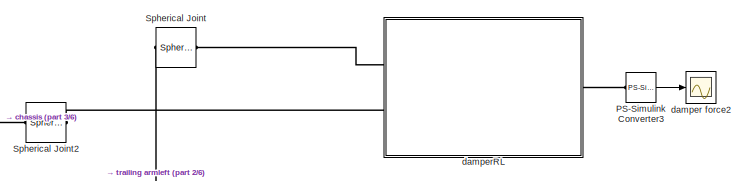
[diagram: root canvas - part 1/6, top right region]
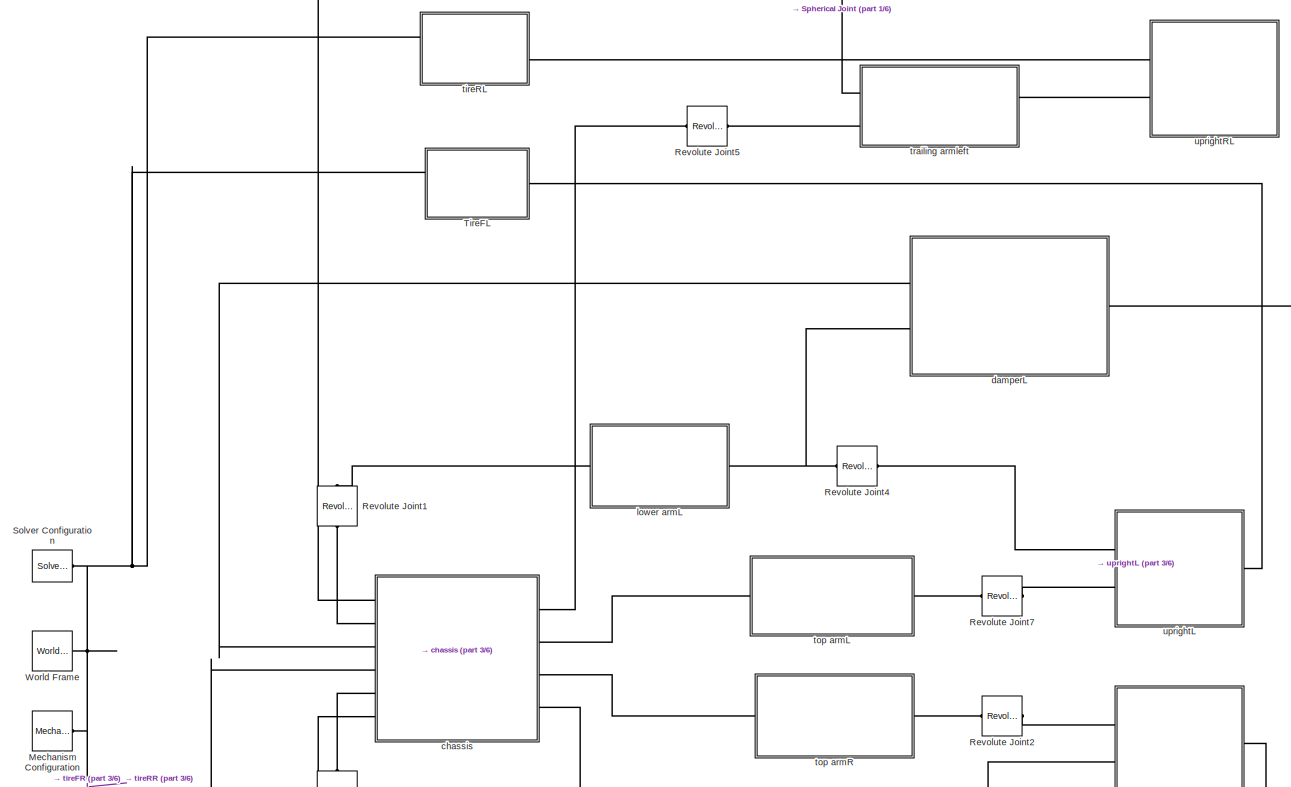
[diagram: root canvas - part 2/6, central region]
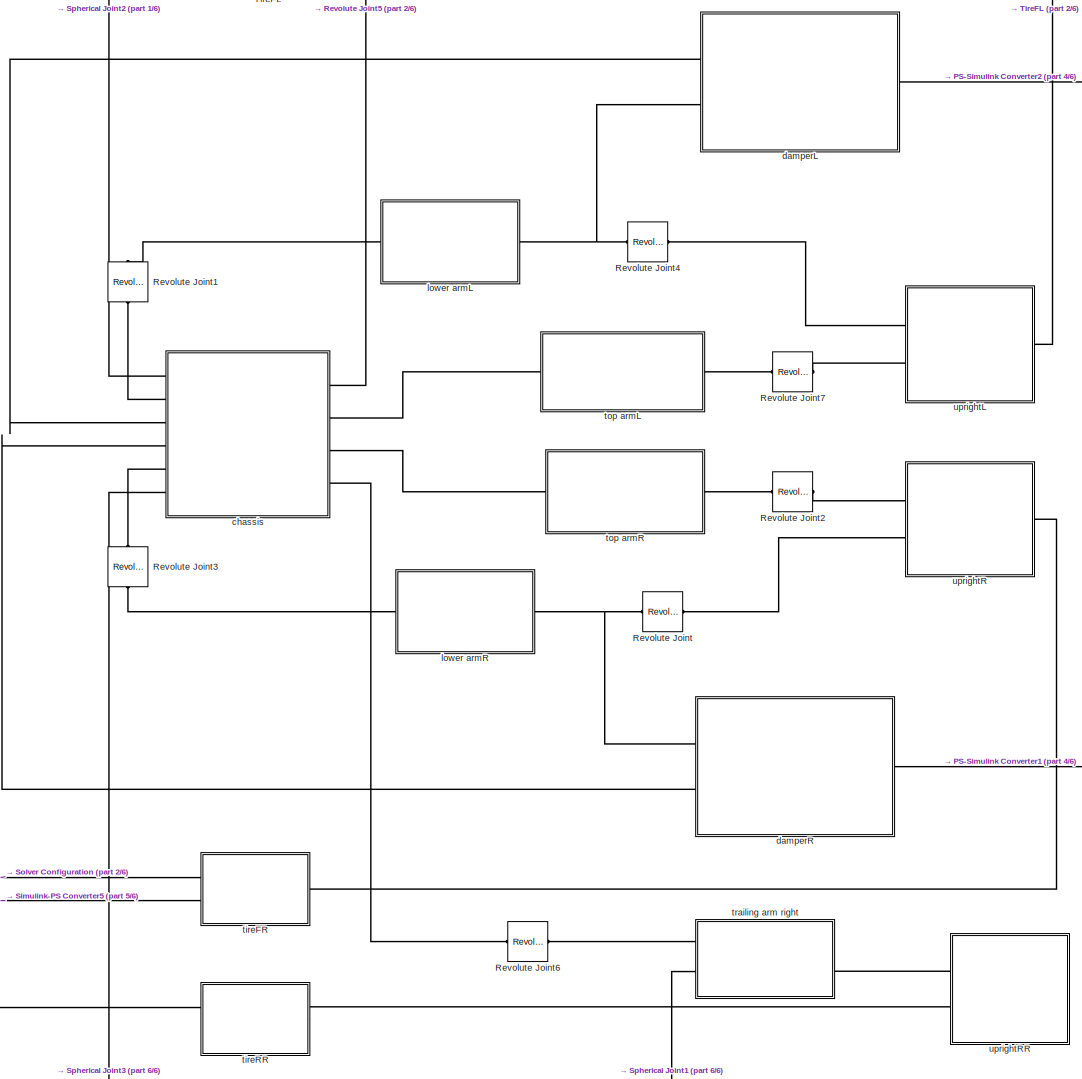
[diagram: root canvas - part 3/6, middle right region]
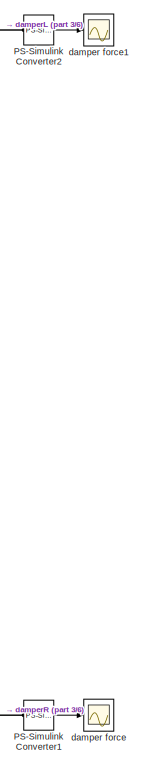
[diagram: root canvas - part 4/6, middle right region]
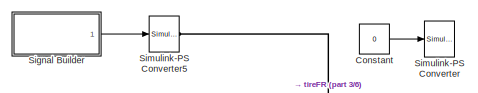
[diagram: root canvas - part 5/6, middle left region]
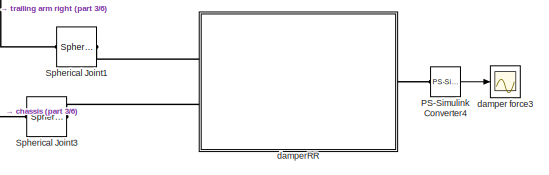
[diagram: root canvas - part 6/6, bottom right region]
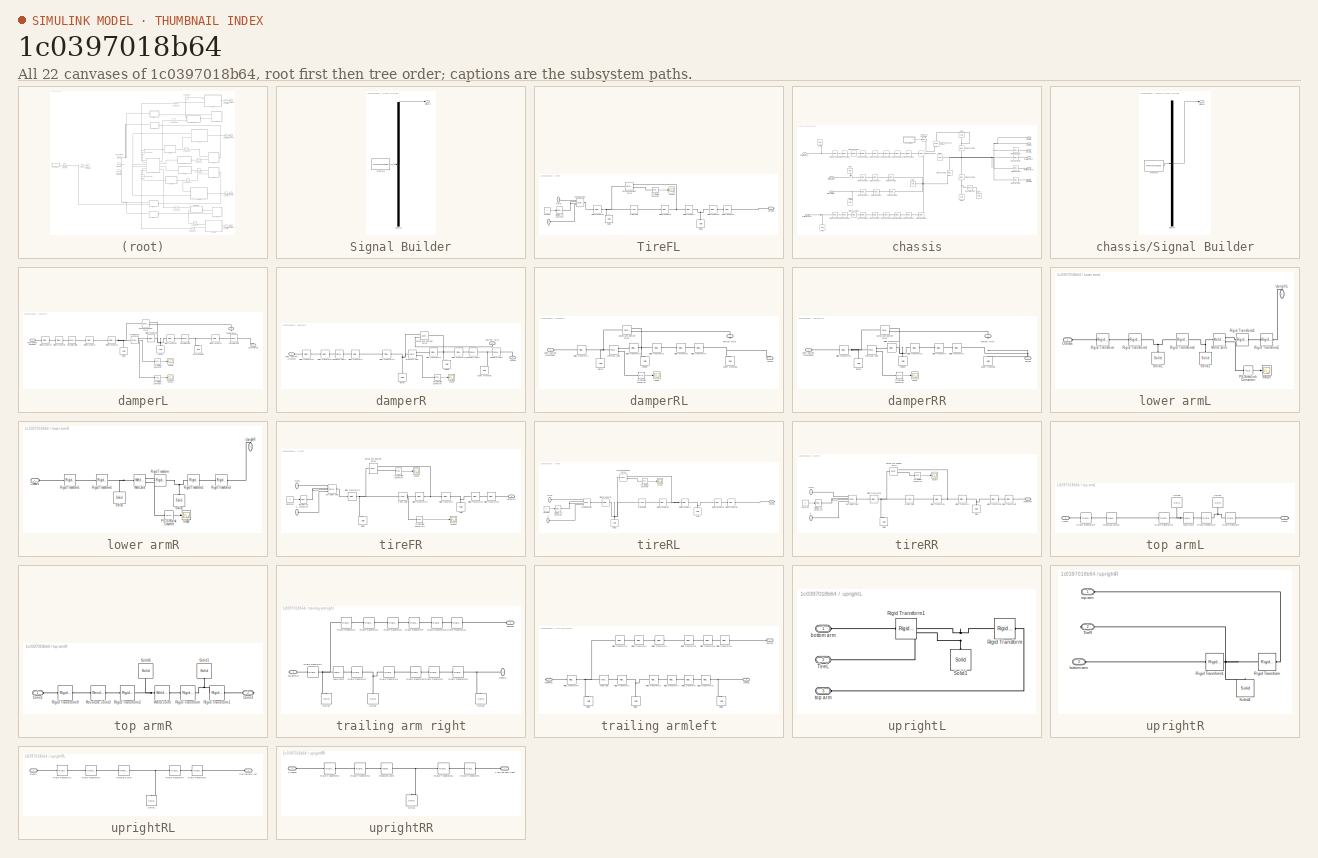
[diagram: thumbnail index - all 22 canvases of the model, root first then tree order]
MODEL slx_1c0397018b64
KIND model
CONFIG AbsTol = auto
CONFIG FixedStep = auto
CONFIG MaxStep = auto
CONFIG MinStep = auto
CONFIG RelTol = 1e-3
CONFIG SampleTimeConstraint = Unconstrained
CONFIG Solver = ode45
CONFIG SolverMode = Auto
CONFIG SolverName = ode45
CONFIG StartTime = 0.0
CONFIG StopTime = 10
BLOCK [Constant] Constant
  Value = 0
BLOCK [Reference] Mechanism Configuration  REF=sm_lib/Utilities/Mechanism
Configuration
  Ports = [0, 0, 0, 0, 0, 0, 1]
  SourceBlock = sm_lib/Utilities/Mechanism\nConfiguration
  SourceType = Mechanism\nConfiguration
BLOCK [Reference] PS-Simulink Converter1  REF=nesl_utility/PS-Simulink
Converter
  Ports = [0, 1, 0, 0, 0, 1]
  SourceBlock = nesl_utility/PS-Simulink\nConverter
  SourceType = PS-Simulink\nConverter
BLOCK [Reference] PS-Simulink Converter2  REF=nesl_utility/PS-Simulink
Converter
  Ports = [0, 1, 0, 0, 0, 1]
  SourceBlock = nesl_utility/PS-Simulink\nConverter
  SourceType = PS-Simulink\nConverter
BLOCK [Reference] PS-Simulink Converter3  REF=nesl_utility/PS-Simulink
Converter
  Ports = [0, 1, 0, 0, 0, 1]
  SourceBlock = nesl_utility/PS-Simulink\nConverter
  SourceType = PS-Simulink\nConverter
BLOCK [Reference] PS-Simulink Converter4  REF=nesl_utility/PS-Simulink
Converter
  Ports = [0, 1, 0, 0, 0, 1]
  SourceBlock = nesl_utility/PS-Simulink\nConverter
  SourceType = PS-Simulink\nConverter
BLOCK [Reference] Revolute Joint  REF=sm_lib/Joints/Revolute Joint
  Ports = [0, 0, 0, 0, 0, 1, 1]
  SourceBlock = sm_lib/Joints/Revolute Joint
  SourceType = Revolute Joint
BLOCK [Reference] Revolute Joint1  REF=sm_lib/Joints/Revolute Joint
  Ports = [0, 0, 0, 0, 0, 1, 1]
  SourceBlock = sm_lib/Joints/Revolute Joint
  SourceType = Revolute Joint
BLOCK [Reference] Revolute Joint2  REF=sm_lib/Joints/Revolute Joint
  Ports = [0, 0, 0, 0, 0, 1, 1]
  SourceBlock = sm_lib/Joints/Revolute Joint
  SourceType = Revolute Joint
BLOCK [Reference] Revolute Joint3  REF=sm_lib/Joints/Revolute Joint
  Ports = [0, 0, 0, 0, 0, 1, 1]
  SourceBlock = sm_lib/Joints/Revolute Joint
  SourceType = Revolute Joint
BLOCK [Reference] Revolute Joint4  REF=sm_lib/Joints/Revolute Joint
  Ports = [0, 0, 0, 0, 0, 1, 1]
  SourceBlock = sm_lib/Joints/Revolute Joint
  SourceType = Revolute Joint
BLOCK [Reference] Revolute Joint5  REF=sm_lib/Joints/Revolute Joint
  Ports = [0, 0, 0, 0, 0, 1, 1]
  SourceBlock = sm_lib/Joints/Revolute Joint
  SourceType = Revolute Joint
BLOCK [Reference] Revolute Joint6  REF=sm_lib/Joints/Revolute Joint
  Ports = [0, 0, 0, 0, 0, 1, 1]
  SourceBlock = sm_lib/Joints/Revolute Joint
  SourceType = Revolute Joint
BLOCK [Reference] Revolute Joint7  REF=sm_lib/Joints/Revolute Joint
  Ports = [0, 0, 0, 0, 0, 1, 1]
  SourceBlock = sm_lib/Joints/Revolute Joint
  SourceType = Revolute Joint
BLOCK [SubSystem] Signal Builder
  ClipboardFcn = sigbuilder_block('clipboard');
  CloseFcn = sigbuilder_block('close');
  ContinueFcn = sigbuilder_block('continue');
  CopyFcn = sigbuilder_block('copy');
  DeleteFcn = sigbuilder_block('delete');
  LoadFcn = sigbuilder_block('load');
  MaskHideContents = on
  ModelCloseFcn = sigbuilder_block('modelClose');
  NameChangeFcn = sigbuilder_block('namechange');
  OpenFcn = sigbuilder_block('open',[437.25 117.75 550.5 394.5 ]);
  PauseFcn = sigbuilder_block('pause');
  Ports = [0, 1]
  PreSaveFcn = sigbuilder_block('preSave');
  RequestExecContextInheritance = off
  StartFcn = sigbuilder_block('start');
  StopFcn = sigbuilder_block('stop');
  Tag = STV Subsys
  Variant = off
BLOCK [Demux] Signal Builder/Demux
  Outputs = 1
  Ports = [1, 1]
  Tag = STV Demux
BLOCK [FromWorkspace] Signal Builder/FromWs
  SampleTime = 0
  Tag = STV FromWs
  VariableName = tuvar
  ZeroCross = on
BLOCK [Outport] Signal Builder/Signal 1
  IconDisplay = Port number
  Tag = STV Outport
BLOCK [Reference] Simulink-PS Converter  REF=nesl_utility/Simulink-PS
Converter
  Ports = [1, 0, 0, 0, 0, 0, 1]
  SourceBlock = nesl_utility/Simulink-PS\nConverter
  SourceType = Simulink-PS\nConverter
BLOCK [Reference] Simulink-PS Converter5  REF=nesl_utility/Simulink-PS
Converter
  Ports = [1, 0, 0, 0, 0, 0, 1]
  SourceBlock = nesl_utility/Simulink-PS\nConverter
  SourceType = Simulink-PS\nConverter
BLOCK [Reference] Solver Configuration  REF=nesl_utility/Solver
Configuration
  Ports = [0, 0, 0, 0, 0, 0, 1]
  SourceBlock = nesl_utility/Solver\nConfiguration
  SourceType = Solver\nConfiguration
BLOCK [Reference] Spherical Joint  REF=sm_lib/Joints/Spherical
Joint
  Ports = [0, 0, 0, 0, 0, 1, 1]
  SourceBlock = sm_lib/Joints/Spherical\nJoint
  SourceType = Spherical\nJoint
BLOCK [Reference] Spherical Joint1  REF=sm_lib/Joints/Spherical
Joint
  Ports = [0, 0, 0, 0, 0, 1, 1]
  SourceBlock = sm_lib/Joints/Spherical\nJoint
  SourceType = Spherical\nJoint
BLOCK [Reference] Spherical Joint2  REF=sm_lib/Joints/Spherical
Joint
  Ports = [0, 0, 0, 0, 0, 1, 1]
  SourceBlock = sm_lib/Joints/Spherical\nJoint
  SourceType = Spherical\nJoint
BLOCK [Reference] Spherical Joint3  REF=sm_lib/Joints/Spherical
Joint
  Ports = [0, 0, 0, 0, 0, 1, 1]
  SourceBlock = sm_lib/Joints/Spherical\nJoint
  SourceType = Spherical\nJoint
BLOCK [SubSystem] TireFL
  Ports = [0, 0, 0, 0, 0, 2, 1]
  RequestExecContextInheritance = off
  Variant = off
BLOCK [Reference] TireFL/6-DOF Joint  REF=sm_lib/Joints/6-DOF Joint
  Ports = [0, 0, 0, 0, 0, 1, 1]
  SourceBlock = sm_lib/Joints/6-DOF Joint
  SourceType = 6-DOF Joint
BLOCK [Reference] TireFL/Cartesian Joint  REF=sm_lib/Joints/Cartesian
Joint
  Ports = [0, 0, 0, 0, 0, 4, 1]
  SourceBlock = sm_lib/Joints/Cartesian\nJoint
  SourceType = Cartesian\nJoint
BLOCK [Constant] TireFL/Constant
  Value = 0
BLOCK [Reference] TireFL/PS-Simulink Converter  REF=nesl_utility/PS-Simulink
Converter
  Ports = [0, 1, 0, 0, 0, 1]
  SourceBlock = nesl_utility/PS-Simulink\nConverter
  SourceType = PS-Simulink\nConverter
BLOCK [Reference] TireFL/Rigid Transform  REF=sm_lib/Frames and
Transforms/Rigid
Transform
  Ports = [0, 0, 0, 0, 0, 1, 1]
  SourceBlock = sm_lib/Frames and\nTransforms/Rigid\nTransform
  SourceType = Rigid\nTransform
BLOCK [Reference] TireFL/Rigid Transform1  REF=sm_lib/Frames and
Transforms/Rigid
Transform
  Ports = [0, 0, 0, 0, 0, 1, 1]
  SourceBlock = sm_lib/Frames and\nTransforms/Rigid\nTransform
  SourceType = Rigid\nTransform
BLOCK [Reference] TireFL/Rigid Transform2  REF=sm_lib/Frames and
Transforms/Rigid
Transform
  Ports = [0, 0, 0, 0, 0, 1, 1]
  SourceBlock = sm_lib/Frames and\nTransforms/Rigid\nTransform
  SourceType = Rigid\nTransform
BLOCK [Reference] TireFL/Rigid Transform3  REF=sm_lib/Frames and
Transforms/Rigid
Transform
  Ports = [0, 0, 0, 0, 0, 1, 1]
  SourceBlock = sm_lib/Frames and\nTransforms/Rigid\nTransform
  SourceType = Rigid\nTransform
BLOCK [Reference] TireFL/Rigid Transform4  REF=sm_lib/Frames and
Transforms/Rigid
Transform
  Ports = [0, 0, 0, 0, 0, 1, 1]
  SourceBlock = sm_lib/Frames and\nTransforms/Rigid\nTransform
  SourceType = Rigid\nTransform
BLOCK [Scope] TireFL/Scope
  Ports = [1]
  ScopeSpecificationString = C++SS(StrPVP('Location','[188, 390, 512, 629]'),StrPVP('Open','off'),MxPVP('AxesTitles',24,'struct(''axes1'',''%<SignalLabel>'')'),MxPVP('ScopeGraphics',28,'struct(''FigureColor'',''[0.5 0.5 0.5]'',''AxesColor'',''[0 0 0]'',''AxesTickColor'',''[1 1 1]'',''LineColors'',''[1 1 0;1 0 1;0 1 1;1 0 0;0 1 0;0 0 1]'',''LineStyles'',''-|-|-|-|-|-'',''LineWidths'',''[0.5 0.5 0.5 0.5 0.5 0.5]'',''MarkerStyle...<+271ch>  <repeated x3 — deduplicated; at blocks: Scope>
BLOCK [Reference] TireFL/Simulink-PS Converter  REF=nesl_utility/Simulink-PS
Converter
  Ports = [1, 0, 0, 0, 0, 0, 1]
  SourceBlock = nesl_utility/Simulink-PS\nConverter
  SourceType = Simulink-PS\nConverter
BLOCK [Reference] TireFL/Solid1  REF=sm_lib/Body Elements/Solid
  Ports = [0, 0, 0, 0, 0, 0, 1]
  SourceBlock = sm_lib/Body Elements/Solid
  SourceType = Solid
BLOCK [Reference] TireFL/Solid2  REF=sm_lib/Body Elements/Solid
  Ports = [0, 0, 0, 0, 0, 0, 1]
  SourceBlock = sm_lib/Body Elements/Solid
  SourceType = Solid
BLOCK [Reference] TireFL/Spring and Damper Force  REF=sm_lib/Forces and
Torques/Spring and
Damper Force
  Ports = [0, 0, 0, 0, 0, 1, 2]
  SourceBlock = sm_lib/Forces and\nTorques/Spring and\nDamper Force
  SourceType = Spring and\nDamper Force
BLOCK [PMIOPort] TireFL/World
  Port = 2
  Side = Left
BLOCK [PMIOPort] TireFL/Z
  Port = 3
  Side = Left
BLOCK [PMIOPort] TireFL/uprightL
  Port = 1
  Side = Right
BLOCK [Reference] World Frame  REF=sm_lib/Frames and
Transforms/World Frame
  Ports = [0, 0, 0, 0, 0, 0, 1]
  SourceBlock = sm_lib/Frames and\nTransforms/World Frame
  SourceType = World Frame
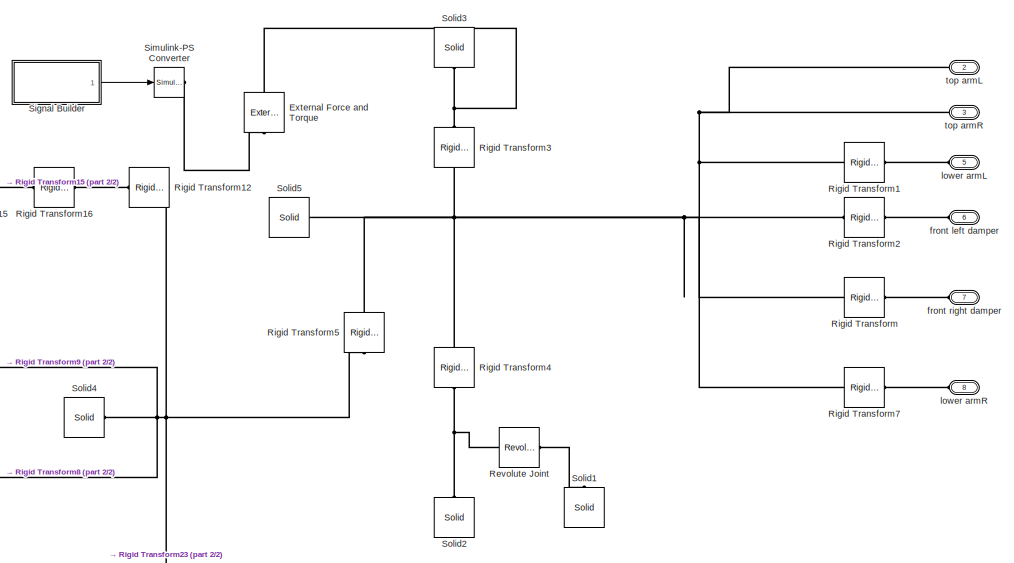
[diagram: chassis - part 1/2, middle right region]
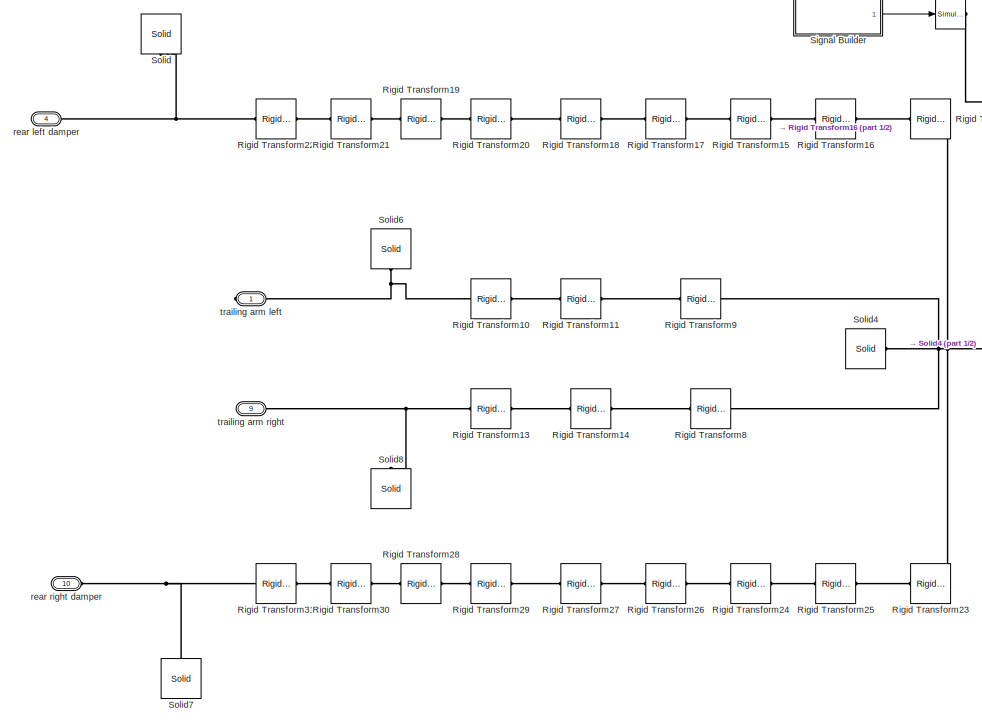
[diagram: chassis - part 2/2, left side, full height]
BLOCK [SubSystem] chassis
  Ports = [0, 0, 0, 0, 0, 6, 4]
  RequestExecContextInheritance = off
  Variant = off
BLOCK [Reference] chassis/External Force and Torque  REF=sm_lib/Forces and
Torques/External Force
and Torque
  Ports = [0, 0, 0, 0, 0, 1, 1]
  SourceBlock = sm_lib/Forces and\nTorques/External Force\nand Torque
  SourceType = External Force\nand Torque
BLOCK [Reference] chassis/Revolute Joint  REF=sm_lib/Joints/Revolute Joint
  Ports = [0, 0, 0, 0, 0, 1, 1]
  SourceBlock = sm_lib/Joints/Revolute Joint
  SourceType = Revolute Joint
BLOCK [Reference] chassis/Rigid Transform  REF=sm_lib/Frames and
Transforms/Rigid
Transform
  Ports = [0, 0, 0, 0, 0, 1, 1]
  SourceBlock = sm_lib/Frames and\nTransforms/Rigid\nTransform
  SourceType = Rigid\nTransform
BLOCK [Reference] chassis/Rigid Transform1  REF=sm_lib/Frames and
Transforms/Rigid
Transform
  Ports = [0, 0, 0, 0, 0, 1, 1]
  SourceBlock = sm_lib/Frames and\nTransforms/Rigid\nTransform
  SourceType = Rigid\nTransform
BLOCK [Reference] chassis/Rigid Transform10  REF=sm_lib/Frames and
Transforms/Rigid
Transform
  Ports = [0, 0, 0, 0, 0, 1, 1]
  SourceBlock = sm_lib/Frames and\nTransforms/Rigid\nTransform
  SourceType = Rigid\nTransform
BLOCK [Reference] chassis/Rigid Transform11  REF=sm_lib/Frames and
Transforms/Rigid
Transform
  Ports = [0, 0, 0, 0, 0, 1, 1]
  SourceBlock = sm_lib/Frames and\nTransforms/Rigid\nTransform
  SourceType = Rigid\nTransform
BLOCK [Reference] chassis/Rigid Transform12  REF=sm_lib/Frames and
Transforms/Rigid
Transform
  Ports = [0, 0, 0, 0, 0, 1, 1]
  SourceBlock = sm_lib/Frames and\nTransforms/Rigid\nTransform
  SourceType = Rigid\nTransform
BLOCK [Reference] chassis/Rigid Transform13  REF=sm_lib/Frames and
Transforms/Rigid
Transform
  Ports = [0, 0, 0, 0, 0, 1, 1]
  SourceBlock = sm_lib/Frames and\nTransforms/Rigid\nTransform
  SourceType = Rigid\nTransform
BLOCK [Reference] chassis/Rigid Transform14  REF=sm_lib/Frames and
Transforms/Rigid
Transform
  Ports = [0, 0, 0, 0, 0, 1, 1]
  SourceBlock = sm_lib/Frames and\nTransforms/Rigid\nTransform
  SourceType = Rigid\nTransform
BLOCK [Reference] chassis/Rigid Transform15  REF=sm_lib/Frames and
Transforms/Rigid
Transform
  Ports = [0, 0, 0, 0, 0, 1, 1]
  SourceBlock = sm_lib/Frames and\nTransforms/Rigid\nTransform
  SourceType = Rigid\nTransform
BLOCK [Reference] chassis/Rigid Transform16  REF=sm_lib/Frames and
Transforms/Rigid
Transform
  Ports = [0, 0, 0, 0, 0, 1, 1]
  SourceBlock = sm_lib/Frames and\nTransforms/Rigid\nTransform
  SourceType = Rigid\nTransform
BLOCK [Reference] chassis/Rigid Transform17  REF=sm_lib/Frames and
Transforms/Rigid
Transform
  Ports = [0, 0, 0, 0, 0, 1, 1]
  SourceBlock = sm_lib/Frames and\nTransforms/Rigid\nTransform
  SourceType = Rigid\nTransform
BLOCK [Reference] chassis/Rigid Transform18  REF=sm_lib/Frames and
Transforms/Rigid
Transform
  Ports = [0, 0, 0, 0, 0, 1, 1]
  SourceBlock = sm_lib/Frames and\nTransforms/Rigid\nTransform
  SourceType = Rigid\nTransform
BLOCK [Reference] chassis/Rigid Transform19  REF=sm_lib/Frames and
Transforms/Rigid
Transform
  Ports = [0, 0, 0, 0, 0, 1, 1]
  SourceBlock = sm_lib/Frames and\nTransforms/Rigid\nTransform
  SourceType = Rigid\nTransform
BLOCK [Reference] chassis/Rigid Transform2  REF=sm_lib/Frames and
Transforms/Rigid
Transform
  Ports = [0, 0, 0, 0, 0, 1, 1]
  SourceBlock = sm_lib/Frames and\nTransforms/Rigid\nTransform
  SourceType = Rigid\nTransform
BLOCK [Reference] chassis/Rigid Transform20  REF=sm_lib/Frames and
Transforms/Rigid
Transform
  Ports = [0, 0, 0, 0, 0, 1, 1]
  SourceBlock = sm_lib/Frames and\nTransforms/Rigid\nTransform
  SourceType = Rigid\nTransform
BLOCK [Reference] chassis/Rigid Transform21  REF=sm_lib/Frames and
Transforms/Rigid
Transform
  Ports = [0, 0, 0, 0, 0, 1, 1]
  SourceBlock = sm_lib/Frames and\nTransforms/Rigid\nTransform
  SourceType = Rigid\nTransform
BLOCK [Reference] chassis/Rigid Transform22  REF=sm_lib/Frames and
Transforms/Rigid
Transform
  Ports = [0, 0, 0, 0, 0, 1, 1]
  SourceBlock = sm_lib/Frames and\nTransforms/Rigid\nTransform
  SourceType = Rigid\nTransform
BLOCK [Reference] chassis/Rigid Transform23  REF=sm_lib/Frames and
Transforms/Rigid
Transform
  Ports = [0, 0, 0, 0, 0, 1, 1]
  SourceBlock = sm_lib/Frames and\nTransforms/Rigid\nTransform
  SourceType = Rigid\nTransform
BLOCK [Reference] chassis/Rigid Transform24  REF=sm_lib/Frames and
Transforms/Rigid
Transform
  Ports = [0, 0, 0, 0, 0, 1, 1]
  SourceBlock = sm_lib/Frames and\nTransforms/Rigid\nTransform
  SourceType = Rigid\nTransform
BLOCK [Reference] chassis/Rigid Transform25  REF=sm_lib/Frames and
Transforms/Rigid
Transform
  Ports = [0, 0, 0, 0, 0, 1, 1]
  SourceBlock = sm_lib/Frames and\nTransforms/Rigid\nTransform
  SourceType = Rigid\nTransform
BLOCK [Reference] chassis/Rigid Transform26  REF=sm_lib/Frames and
Transforms/Rigid
Transform
  Ports = [0, 0, 0, 0, 0, 1, 1]
  SourceBlock = sm_lib/Frames and\nTransforms/Rigid\nTransform
  SourceType = Rigid\nTransform
BLOCK [Reference] chassis/Rigid Transform27  REF=sm_lib/Frames and
Transforms/Rigid
Transform
  Ports = [0, 0, 0, 0, 0, 1, 1]
  SourceBlock = sm_lib/Frames and\nTransforms/Rigid\nTransform
  SourceType = Rigid\nTransform
BLOCK [Reference] chassis/Rigid Transform28  REF=sm_lib/Frames and
Transforms/Rigid
Transform
  Ports = [0, 0, 0, 0, 0, 1, 1]
  SourceBlock = sm_lib/Frames and\nTransforms/Rigid\nTransform
  SourceType = Rigid\nTransform
BLOCK [Reference] chassis/Rigid Transform29  REF=sm_lib/Frames and
Transforms/Rigid
Transform
  Ports = [0, 0, 0, 0, 0, 1, 1]
  SourceBlock = sm_lib/Frames and\nTransforms/Rigid\nTransform
  SourceType = Rigid\nTransform
BLOCK [Reference] chassis/Rigid Transform3  REF=sm_lib/Frames and
Transforms/Rigid
Transform
  Ports = [0, 0, 0, 0, 0, 1, 1]
  SourceBlock = sm_lib/Frames and\nTransforms/Rigid\nTransform
  SourceType = Rigid\nTransform
BLOCK [Reference] chassis/Rigid Transform30  REF=sm_lib/Frames and
Transforms/Rigid
Transform
  Ports = [0, 0, 0, 0, 0, 1, 1]
  SourceBlock = sm_lib/Frames and\nTransforms/Rigid\nTransform
  SourceType = Rigid\nTransform
BLOCK [Reference] chassis/Rigid Transform31  REF=sm_lib/Frames and
Transforms/Rigid
Transform
  Ports = [0, 0, 0, 0, 0, 1, 1]
  SourceBlock = sm_lib/Frames and\nTransforms/Rigid\nTransform
  SourceType = Rigid\nTransform
BLOCK [Reference] chassis/Rigid Transform4  REF=sm_lib/Frames and
Transforms/Rigid
Transform
  Ports = [0, 0, 0, 0, 0, 1, 1]
  SourceBlock = sm_lib/Frames and\nTransforms/Rigid\nTransform
  SourceType = Rigid\nTransform
BLOCK [Reference] chassis/Rigid Transform5  REF=sm_lib/Frames and
Transforms/Rigid
Transform
  Ports = [0, 0, 0, 0, 0, 1, 1]
  SourceBlock = sm_lib/Frames and\nTransforms/Rigid\nTransform
  SourceType = Rigid\nTransform
BLOCK [Reference] chassis/Rigid Transform7  REF=sm_lib/Frames and
Transforms/Rigid
Transform
  Ports = [0, 0, 0, 0, 0, 1, 1]
  SourceBlock = sm_lib/Frames and\nTransforms/Rigid\nTransform
  SourceType = Rigid\nTransform
BLOCK [Reference] chassis/Rigid Transform8  REF=sm_lib/Frames and
Transforms/Rigid
Transform
  Ports = [0, 0, 0, 0, 0, 1, 1]
  SourceBlock = sm_lib/Frames and\nTransforms/Rigid\nTransform
  SourceType = Rigid\nTransform
BLOCK [Reference] chassis/Rigid Transform9  REF=sm_lib/Frames and
Transforms/Rigid
Transform
  Ports = [0, 0, 0, 0, 0, 1, 1]
  SourceBlock = sm_lib/Frames and\nTransforms/Rigid\nTransform
  SourceType = Rigid\nTransform
BLOCK [SubSystem] chassis/Signal Builder
  ClipboardFcn = sigbuilder_block('clipboard');
  CloseFcn = sigbuilder_block('close');
  ContinueFcn = sigbuilder_block('continue');
  CopyFcn = sigbuilder_block('copy');
  DeleteFcn = sigbuilder_block('delete');
  LoadFcn = sigbuilder_block('load');
  MaskHideContents = on
  ModelCloseFcn = sigbuilder_block('modelClose');
  NameChangeFcn = sigbuilder_block('namechange');
  OpenFcn = sigbuilder_block('open',[437.6 199.2 550.4 400 ]);
  PauseFcn = sigbuilder_block('pause');
  Ports = [0, 1]
  PreSaveFcn = sigbuilder_block('preSave');
  RequestExecContextInheritance = off
  StartFcn = sigbuilder_block('start');
  StopFcn = sigbuilder_block('stop');
  Tag = STV Subsys
  Variant = off
BLOCK [Demux] chassis/Signal Builder/Demux
  Outputs = 1
  Ports = [1, 1]
  Tag = STV Demux
BLOCK [FromWorkspace] chassis/Signal Builder/FromWs
  SampleTime = 0
  Tag = STV FromWs
  VariableName = tuvar
  ZeroCross = on
BLOCK [Outport] chassis/Signal Builder/Signal 1
  IconDisplay = Port number
  Tag = STV Outport
BLOCK [Reference] chassis/Simulink-PS Converter  REF=nesl_utility/Simulink-PS
Converter
  Ports = [1, 0, 0, 0, 0, 0, 1]
  SourceBlock = nesl_utility/Simulink-PS\nConverter
  SourceType = Simulink-PS\nConverter
BLOCK [Reference] chassis/Solid  REF=sm_lib/Body Elements/Solid
  Ports = [0, 0, 0, 0, 0, 0, 1]
  SourceBlock = sm_lib/Body Elements/Solid
  SourceType = Solid
BLOCK [Reference] chassis/Solid1  REF=sm_lib/Body Elements/Solid
  Ports = [0, 0, 0, 0, 0, 0, 1]
  SourceBlock = sm_lib/Body Elements/Solid
  SourceType = Solid
BLOCK [Reference] chassis/Solid2  REF=sm_lib/Body Elements/Solid
  Ports = [0, 0, 0, 0, 0, 0, 1]
  SourceBlock = sm_lib/Body Elements/Solid
  SourceType = Solid
BLOCK [Reference] chassis/Solid3  REF=sm_lib/Body Elements/Solid
  Ports = [0, 0, 0, 0, 0, 0, 1]
  SourceBlock = sm_lib/Body Elements/Solid
  SourceType = Solid
BLOCK [Reference] chassis/Solid4  REF=sm_lib/Body Elements/Solid
  Ports = [0, 0, 0, 0, 0, 0, 1]
  SourceBlock = sm_lib/Body Elements/Solid
  SourceType = Solid
BLOCK [Reference] chassis/Solid5  REF=sm_lib/Body Elements/Solid
  Ports = [0, 0, 0, 0, 0, 0, 1]
  SourceBlock = sm_lib/Body Elements/Solid
  SourceType = Solid
BLOCK [Reference] chassis/Solid6  REF=sm_lib/Body Elements/Solid
  Ports = [0, 0, 0, 0, 0, 0, 1]
  SourceBlock = sm_lib/Body Elements/Solid
  SourceType = Solid
BLOCK [Reference] chassis/Solid7  REF=sm_lib/Body Elements/Solid
  Ports = [0, 0, 0, 0, 0, 0, 1]
  SourceBlock = sm_lib/Body Elements/Solid
  SourceType = Solid
BLOCK [Reference] chassis/Solid8  REF=sm_lib/Body Elements/Solid
  Ports = [0, 0, 0, 0, 0, 0, 1]
  SourceBlock = sm_lib/Body Elements/Solid
  SourceType = Solid
BLOCK [PMIOPort] chassis/front left damper
  Port = 6
  Side = Left
BLOCK [PMIOPort] chassis/front right damper
  Port = 7
  Side = Left
BLOCK [PMIOPort] chassis/lower  armL
  Port = 5
  Side = Left
BLOCK [PMIOPort] chassis/lower armR
  Port = 8
  Side = Left
BLOCK [PMIOPort] chassis/rear left damper
  Port = 4
  Side = Left
BLOCK [PMIOPort] chassis/rear right damper
  Port = 10
  Side = Left
BLOCK [PMIOPort] chassis/top armL
  Port = 2
  Side = Right
BLOCK [PMIOPort] chassis/top armR
  Port = 3
  Side = Right
BLOCK [PMIOPort] chassis/trailing arm left
  Port = 1
  Side = Right
BLOCK [PMIOPort] chassis/trailing arm right
  Port = 9
  Side = Right
BLOCK [Scope] damper force
  Ports = [1]
  ScopeSpecificationString = Simulink.scopes.TimeScopeBlockCfg('CurrentConfiguration', extmgr.ConfigurationSet(extmgr.Configuration('Core','General UI',true),extmgr.Configuration('Core','Source UI',true),extmgr.Configuration('Sources','WiredSimulink',true,'DataLoggingVariableName','ScopeData1','DataLoggingSaveFormat','StructureWithTime','DataLoggingLimitDataPoints',true,'DataLoggingDecimation','1','DataLoggingDecimateData',tr...<+1751ch>
BLOCK [Scope] damper force1
  Ports = [1]
  ScopeSpecificationString = Simulink.scopes.TimeScopeBlockCfg('CurrentConfiguration', extmgr.ConfigurationSet(extmgr.Configuration('Core','General UI',true),extmgr.Configuration('Core','Source UI',true),extmgr.Configuration('Sources','WiredSimulink',true,'DataLoggingVariableName','ScopeData2','DataLoggingSaveFormat','StructureWithTime','DataLoggingLimitDataPoints',true,'DataLoggingDecimation','1','DataLoggingDecimateData',tr...<+1749ch>
BLOCK [Scope] damper force2
  Ports = [1]
  ScopeSpecificationString = Simulink.scopes.TimeScopeBlockCfg('CurrentConfiguration', extmgr.ConfigurationSet(extmgr.Configuration('Core','General UI',true),extmgr.Configuration('Core','Source UI',true),extmgr.Configuration('Sources','WiredSimulink',true,'DataLoggingVariableName','ScopeData7','DataLoggingSaveFormat','StructureWithTime','DataLoggingLimitDataPoints',true,'DataLoggingDecimation','1','DataLoggingDecimateData',tr...<+1743ch>
BLOCK [Scope] damper force3
  Ports = [1]
  ScopeSpecificationString = Simulink.scopes.TimeScopeBlockCfg('CurrentConfiguration', extmgr.ConfigurationSet(extmgr.Configuration('Core','General UI',true),extmgr.Configuration('Core','Source UI',true),extmgr.Configuration('Sources','WiredSimulink',true,'DataLoggingVariableName','ScopeData8','DataLoggingSaveFormat','StructureWithTime','DataLoggingLimitDataPoints',true,'DataLoggingDecimation','1','DataLoggingDecimateData',tr...<+1739ch>
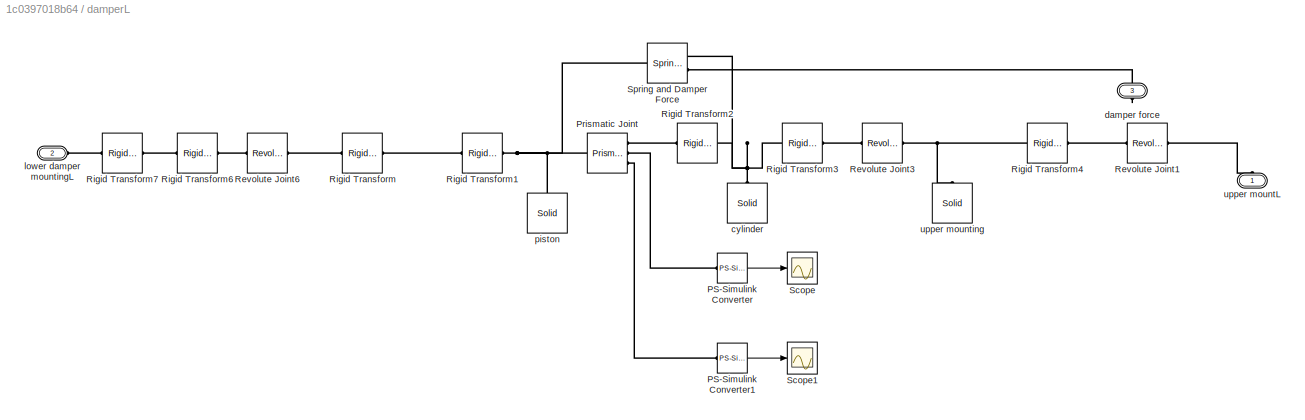
BLOCK [SubSystem] damperL
  Ports = [0, 0, 0, 0, 0, 2, 1]
  RequestExecContextInheritance = off
  Variant = off
BLOCK [Reference] damperL/PS-Simulink Converter  REF=nesl_utility/PS-Simulink
Converter
  Ports = [0, 1, 0, 0, 0, 1]
  SourceBlock = nesl_utility/PS-Simulink\nConverter
  SourceType = PS-Simulink\nConverter
BLOCK [Reference] damperL/PS-Simulink Converter1  REF=nesl_utility/PS-Simulink
Converter
  Ports = [0, 1, 0, 0, 0, 1]
  SourceBlock = nesl_utility/PS-Simulink\nConverter
  SourceType = PS-Simulink\nConverter
BLOCK [Reference] damperL/Prismatic Joint  REF=sm_lib/Joints/Prismatic
Joint
  Ports = [0, 0, 0, 0, 0, 1, 3]
  SourceBlock = sm_lib/Joints/Prismatic\nJoint
  SourceType = Prismatic\nJoint
BLOCK [Reference] damperL/Revolute Joint1  REF=sm_lib/Joints/Revolute Joint
  Ports = [0, 0, 0, 0, 0, 1, 1]
  SourceBlock = sm_lib/Joints/Revolute Joint
  SourceType = Revolute Joint
BLOCK [Reference] damperL/Revolute Joint3  REF=sm_lib/Joints/Revolute Joint
  Ports = [0, 0, 0, 0, 0, 1, 1]
  SourceBlock = sm_lib/Joints/Revolute Joint
  SourceType = Revolute Joint
BLOCK [Reference] damperL/Revolute Joint6  REF=sm_lib/Joints/Revolute Joint
  Ports = [0, 0, 0, 0, 0, 1, 1]
  SourceBlock = sm_lib/Joints/Revolute Joint
  SourceType = Revolute Joint
BLOCK [Reference] damperL/Rigid Transform  REF=sm_lib/Frames and
Transforms/Rigid
Transform
  Ports = [0, 0, 0, 0, 0, 1, 1]
  SourceBlock = sm_lib/Frames and\nTransforms/Rigid\nTransform
  SourceType = Rigid\nTransform
BLOCK [Reference] damperL/Rigid Transform1  REF=sm_lib/Frames and
Transforms/Rigid
Transform
  Ports = [0, 0, 0, 0, 0, 1, 1]
  SourceBlock = sm_lib/Frames and\nTransforms/Rigid\nTransform
  SourceType = Rigid\nTransform
BLOCK [Reference] damperL/Rigid Transform2  REF=sm_lib/Frames and
Transforms/Rigid
Transform
  Ports = [0, 0, 0, 0, 0, 1, 1]
  SourceBlock = sm_lib/Frames and\nTransforms/Rigid\nTransform
  SourceType = Rigid\nTransform
BLOCK [Reference] damperL/Rigid Transform3  REF=sm_lib/Frames and
Transforms/Rigid
Transform
  Ports = [0, 0, 0, 0, 0, 1, 1]
  SourceBlock = sm_lib/Frames and\nTransforms/Rigid\nTransform
  SourceType = Rigid\nTransform
BLOCK [Reference] damperL/Rigid Transform4  REF=sm_lib/Frames and
Transforms/Rigid
Transform
  Ports = [0, 0, 0, 0, 0, 1, 1]
  SourceBlock = sm_lib/Frames and\nTransforms/Rigid\nTransform
  SourceType = Rigid\nTransform
BLOCK [Reference] damperL/Rigid Transform6  REF=sm_lib/Frames and
Transforms/Rigid
Transform
  Ports = [0, 0, 0, 0, 0, 1, 1]
  SourceBlock = sm_lib/Frames and\nTransforms/Rigid\nTransform
  SourceType = Rigid\nTransform
BLOCK [Reference] damperL/Rigid Transform7  REF=sm_lib/Frames and
Transforms/Rigid
Transform
  Ports = [0, 0, 0, 0, 0, 1, 1]
  SourceBlock = sm_lib/Frames and\nTransforms/Rigid\nTransform
  SourceType = Rigid\nTransform
BLOCK [Scope] damperL/Scope
  Ports = [1]
  ScopeSpecificationString = C++SS(StrPVP('Location','[578, 381, 902, 620]'),StrPVP('Open','off'),MxPVP('AxesTitles',24,'struct(''axes1'',''%<SignalLabel>'')'),MxPVP('ScopeGraphics',28,'struct(''FigureColor'',''[0.5 0.5 0.5]'',''AxesColor'',''[0 0 0]'',''AxesTickColor'',''[1 1 1]'',''LineColors'',''[1 1 0;1 0 1;0 1 1;1 0 0;0 1 0;0 0 1]'',''LineStyles'',''-|-|-|-|-|-'',''LineWidths'',''[0.5 0.5 0.5 0.5 0.5 0.5]'',''MarkerStyle...<+284ch>
BLOCK [Scope] damperL/Scope1
  Ports = [1]
  ScopeSpecificationString = Simulink.scopes.TimeScopeBlockCfg('CurrentConfiguration', extmgr.ConfigurationSet(extmgr.Configuration('Core','General UI',true),extmgr.Configuration('Core','Source UI',true),extmgr.Configuration('Sources','WiredSimulink',true,'DataLoggingSaveFormat','StructureWithTime','DataLoggingLimitDataPoints',true,'DataLoggingDecimation','1','DataLoggingDecimateData',true,'DataLoggingVariableName','ScopeData...<+2012ch>
BLOCK [Reference] damperL/Spring and Damper Force  REF=sm_lib/Forces and
Torques/Spring and
Damper Force
  Ports = [0, 0, 0, 0, 0, 1, 2]
  SourceBlock = sm_lib/Forces and\nTorques/Spring and\nDamper Force
  SourceType = Spring and\nDamper Force
BLOCK [Reference] damperL/cylinder  REF=sm_lib/Body Elements/Solid
  Ports = [0, 0, 0, 0, 0, 0, 1]
  SourceBlock = sm_lib/Body Elements/Solid
  SourceType = Solid
BLOCK [PMIOPort] damperL/damper force
  Port = 3
  Side = Right
BLOCK [PMIOPort] damperL/lower damper mountingL
  Port = 2
  Side = Left
BLOCK [Reference] damperL/piston  REF=sm_lib/Body Elements/Solid
  Ports = [0, 0, 0, 0, 0, 0, 1]
  SourceBlock = sm_lib/Body Elements/Solid
  SourceType = Solid
BLOCK [PMIOPort] damperL/upper mountL
  Port = 1
  Side = Left
BLOCK [Reference] damperL/upper mounting  REF=sm_lib/Body Elements/Solid
  Ports = [0, 0, 0, 0, 0, 0, 1]
  SourceBlock = sm_lib/Body Elements/Solid
  SourceType = Solid
BLOCK [SubSystem] damperR
  Ports = [0, 0, 0, 0, 0, 2, 1]
  RequestExecContextInheritance = off
  Variant = off
BLOCK [Reference] damperR/PS-Simulink Converter  REF=nesl_utility/PS-Simulink
Converter
  Ports = [0, 1, 0, 0, 0, 1]
  SourceBlock = nesl_utility/PS-Simulink\nConverter
  SourceType = PS-Simulink\nConverter
BLOCK [Reference] damperR/Prismatic Joint  REF=sm_lib/Joints/Prismatic
Joint
  Ports = [0, 0, 0, 0, 0, 1, 2]
  SourceBlock = sm_lib/Joints/Prismatic\nJoint
  SourceType = Prismatic\nJoint
BLOCK [Reference] damperR/Revolute Joint1  REF=sm_lib/Joints/Revolute Joint
  Ports = [0, 0, 0, 0, 0, 1, 1]
  SourceBlock = sm_lib/Joints/Revolute Joint
  SourceType = Revolute Joint
BLOCK [Reference] damperR/Revolute Joint2  REF=sm_lib/Joints/Revolute Joint
  Ports = [0, 0, 0, 0, 0, 1, 1]
  SourceBlock = sm_lib/Joints/Revolute Joint
  SourceType = Revolute Joint
BLOCK [Reference] damperR/Revolute Joint3  REF=sm_lib/Joints/Revolute Joint
  Ports = [0, 0, 0, 0, 0, 1, 1]
  SourceBlock = sm_lib/Joints/Revolute Joint
  SourceType = Revolute Joint
BLOCK [Reference] damperR/Rigid Transform  REF=sm_lib/Frames and
Transforms/Rigid
Transform
  Ports = [0, 0, 0, 0, 0, 1, 1]
  SourceBlock = sm_lib/Frames and\nTransforms/Rigid\nTransform
  SourceType = Rigid\nTransform
BLOCK [Reference] damperR/Rigid Transform1  REF=sm_lib/Frames and
Transforms/Rigid
Transform
  Ports = [0, 0, 0, 0, 0, 1, 1]
  SourceBlock = sm_lib/Frames and\nTransforms/Rigid\nTransform
  SourceType = Rigid\nTransform
BLOCK [Reference] damperR/Rigid Transform2  REF=sm_lib/Frames and
Transforms/Rigid
Transform
  Ports = [0, 0, 0, 0, 0, 1, 1]
  SourceBlock = sm_lib/Frames and\nTransforms/Rigid\nTransform
  SourceType = Rigid\nTransform
BLOCK [Reference] damperR/Rigid Transform3  REF=sm_lib/Frames and
Transforms/Rigid
Transform
  Ports = [0, 0, 0, 0, 0, 1, 1]
  SourceBlock = sm_lib/Frames and\nTransforms/Rigid\nTransform
  SourceType = Rigid\nTransform
BLOCK [Reference] damperR/Rigid Transform4  REF=sm_lib/Frames and
Transforms/Rigid
Transform
  Ports = [0, 0, 0, 0, 0, 1, 1]
  SourceBlock = sm_lib/Frames and\nTransforms/Rigid\nTransform
  SourceType = Rigid\nTransform
BLOCK [Reference] damperR/Rigid Transform6  REF=sm_lib/Frames and
Transforms/Rigid
Transform
  Ports = [0, 0, 0, 0, 0, 1, 1]
  SourceBlock = sm_lib/Frames and\nTransforms/Rigid\nTransform
  SourceType = Rigid\nTransform
BLOCK [Scope] damperR/Scope
  Ports = [1]
  ScopeSpecificationString = C++SS(StrPVP('Location','[578, 381, 902, 620]'),StrPVP('Open','off'),MxPVP('AxesTitles',24,'struct(''axes1'',''%<SignalLabel>'')'),MxPVP('ScopeGraphics',28,'struct(''FigureColor'',''[0.5 0.5 0.5]'',''AxesColor'',''[0 0 0]'',''AxesTickColor'',''[1 1 1]'',''LineColors'',''[1 1 0;1 0 1;0 1 1;1 0 0;0 1 0;0 0 1]'',''LineStyles'',''-|-|-|-|-|-'',''LineWidths'',''[0.5 0.5 0.5 0.5 0.5 0.5]'',''MarkerStyle...<+280ch>
BLOCK [Reference] damperR/Spring and Damper Force  REF=sm_lib/Forces and
Torques/Spring and
Damper Force
  Ports = [0, 0, 0, 0, 0, 1, 2]
  SourceBlock = sm_lib/Forces and\nTorques/Spring and\nDamper Force
  SourceType = Spring and\nDamper Force
BLOCK [PMIOPort] damperR/chassis 
  Port = 3
  Side = Left
BLOCK [Reference] damperR/cylinder  REF=sm_lib/Body Elements/Solid
  Ports = [0, 0, 0, 0, 0, 0, 1]
  SourceBlock = sm_lib/Body Elements/Solid
  SourceType = Solid
BLOCK [PMIOPort] damperR/damper force
  Port = 2
  Side = Right
BLOCK [PMIOPort] damperR/lower damper mounting
  Port = 1
  Side = Left
BLOCK [Reference] damperR/piston  REF=sm_lib/Body Elements/Solid
  Ports = [0, 0, 0, 0, 0, 0, 1]
  SourceBlock = sm_lib/Body Elements/Solid
  SourceType = Solid
BLOCK [Reference] damperR/upper mounting  REF=sm_lib/Body Elements/Solid
  Ports = [0, 0, 0, 0, 0, 0, 1]
  SourceBlock = sm_lib/Body Elements/Solid
  SourceType = Solid
BLOCK [SubSystem] damperRL
  Ports = [0, 0, 0, 0, 0, 2, 1]
  RequestExecContextInheritance = off
  Variant = off
BLOCK [PMIOPort] damperRL/Chassis
  Port = 2
  Side = Left
BLOCK [Reference] damperRL/PS-Simulink Converter  REF=nesl_utility/PS-Simulink
Converter
  Ports = [0, 1, 0, 0, 0, 1]
  SourceBlock = nesl_utility/PS-Simulink\nConverter
  SourceType = PS-Simulink\nConverter
BLOCK [Reference] damperRL/Prismatic Joint  REF=sm_lib/Joints/Prismatic
Joint
  Ports = [0, 0, 0, 0, 0, 1, 2]
  SourceBlock = sm_lib/Joints/Prismatic\nJoint
  SourceType = Prismatic\nJoint
BLOCK [Reference] damperRL/Rigid Transform  REF=sm_lib/Frames and
Transforms/Rigid
Transform
  Ports = [0, 0, 0, 0, 0, 1, 1]
  SourceBlock = sm_lib/Frames and\nTransforms/Rigid\nTransform
  SourceType = Rigid\nTransform
BLOCK [Reference] damperRL/Rigid Transform1  REF=sm_lib/Frames and
Transforms/Rigid
Transform
  Ports = [0, 0, 0, 0, 0, 1, 1]
  SourceBlock = sm_lib/Frames and\nTransforms/Rigid\nTransform
  SourceType = Rigid\nTransform
BLOCK [Reference] damperRL/Rigid Transform2  REF=sm_lib/Frames and
Transforms/Rigid
Transform
  Ports = [0, 0, 0, 0, 0, 1, 1]
  SourceBlock = sm_lib/Frames and\nTransforms/Rigid\nTransform
  SourceType = Rigid\nTransform
BLOCK [Reference] damperRL/Rigid Transform3  REF=sm_lib/Frames and
Transforms/Rigid
Transform
  Ports = [0, 0, 0, 0, 0, 1, 1]
  SourceBlock = sm_lib/Frames and\nTransforms/Rigid\nTransform
  SourceType = Rigid\nTransform
BLOCK [Reference] damperRL/Rigid Transform4  REF=sm_lib/Frames and
Transforms/Rigid
Transform
  Ports = [0, 0, 0, 0, 0, 1, 1]
  SourceBlock = sm_lib/Frames and\nTransforms/Rigid\nTransform
  SourceType = Rigid\nTransform
BLOCK [Scope] damperRL/Scope
  Ports = [1]
  ScopeSpecificationString = C++SS(StrPVP('Location','[10, 450, 334, 689]'),StrPVP('Open','off'),MxPVP('AxesTitles',24,'struct(''axes1'',''%<SignalLabel>'')'),MxPVP('ScopeGraphics',28,'struct(''FigureColor'',''[0.5 0.5 0.5]'',''AxesColor'',''[0 0 0]'',''AxesTickColor'',''[1 1 1]'',''LineColors'',''[1 1 0;1 0 1;0 1 1;1 0 0;0 1 0;0 0 1]'',''LineStyles'',''-|-|-|-|-|-'',''LineWidths'',''[0.5 0.5 0.5 0.5 0.5 0.5]'',''MarkerStyles...<+259ch>
BLOCK [Reference] damperRL/Spring and Damper Force  REF=sm_lib/Forces and
Torques/Spring and
Damper Force
  Ports = [0, 0, 0, 0, 0, 1, 2]
  SourceBlock = sm_lib/Forces and\nTorques/Spring and\nDamper Force
  SourceType = Spring and\nDamper Force
BLOCK [Reference] damperRL/cylinder  REF=sm_lib/Body Elements/Solid
  Ports = [0, 0, 0, 0, 0, 0, 1]
  SourceBlock = sm_lib/Body Elements/Solid
  SourceType = Solid
BLOCK [PMIOPort] damperRL/damper force
  Port = 3
  Side = Right
BLOCK [PMIOPort] damperRL/lower damper mountingRL
  Port = 1
  Side = Left
BLOCK [Reference] damperRL/piston  REF=sm_lib/Body Elements/Solid
  Ports = [0, 0, 0, 0, 0, 0, 1]
  SourceBlock = sm_lib/Body Elements/Solid
  SourceType = Solid
BLOCK [Reference] damperRL/upper mounting  REF=sm_lib/Body Elements/Solid
  Ports = [0, 0, 0, 0, 0, 0, 1]
  SourceBlock = sm_lib/Body Elements/Solid
  SourceType = Solid
BLOCK [SubSystem] damperRR
  Ports = [0, 0, 0, 0, 0, 2, 1]
  RequestExecContextInheritance = off
  Variant = off
BLOCK [PMIOPort] damperRR/Chassis
  Port = 3
  Side = Left
BLOCK [Reference] damperRR/PS-Simulink Converter  REF=nesl_utility/PS-Simulink
Converter
  Ports = [0, 1, 0, 0, 0, 1]
  SourceBlock = nesl_utility/PS-Simulink\nConverter
  SourceType = PS-Simulink\nConverter
BLOCK [Reference] damperRR/Prismatic Joint  REF=sm_lib/Joints/Prismatic
Joint
  Ports = [0, 0, 0, 0, 0, 1, 2]
  SourceBlock = sm_lib/Joints/Prismatic\nJoint
  SourceType = Prismatic\nJoint
BLOCK [Reference] damperRR/Rigid Transform  REF=sm_lib/Frames and
Transforms/Rigid
Transform
  Ports = [0, 0, 0, 0, 0, 1, 1]
  SourceBlock = sm_lib/Frames and\nTransforms/Rigid\nTransform
  SourceType = Rigid\nTransform
BLOCK [Reference] damperRR/Rigid Transform1  REF=sm_lib/Frames and
Transforms/Rigid
Transform
  Ports = [0, 0, 0, 0, 0, 1, 1]
  SourceBlock = sm_lib/Frames and\nTransforms/Rigid\nTransform
  SourceType = Rigid\nTransform
BLOCK [Reference] damperRR/Rigid Transform2  REF=sm_lib/Frames and
Transforms/Rigid
Transform
  Ports = [0, 0, 0, 0, 0, 1, 1]
  SourceBlock = sm_lib/Frames and\nTransforms/Rigid\nTransform
  SourceType = Rigid\nTransform
BLOCK [Reference] damperRR/Rigid Transform3  REF=sm_lib/Frames and
Transforms/Rigid
Transform
  Ports = [0, 0, 0, 0, 0, 1, 1]
  SourceBlock = sm_lib/Frames and\nTransforms/Rigid\nTransform
  SourceType = Rigid\nTransform
BLOCK [Reference] damperRR/Rigid Transform4  REF=sm_lib/Frames and
Transforms/Rigid
Transform
  Ports = [0, 0, 0, 0, 0, 1, 1]
  SourceBlock = sm_lib/Frames and\nTransforms/Rigid\nTransform
  SourceType = Rigid\nTransform
BLOCK [Scope] damperRR/Scope
  Ports = [1]
  ScopeSpecificationString = C++SS(StrPVP('Location','[578, 381, 902, 620]'),StrPVP('Open','off'),MxPVP('AxesTitles',24,'struct(''axes1'',''%<SignalLabel>'')'),MxPVP('ScopeGraphics',28,'struct(''FigureColor'',''[0.5 0.5 0.5]'',''AxesColor'',''[0 0 0]'',''AxesTickColor'',''[1 1 1]'',''LineColors'',''[1 1 0;1 0 1;0 1 1;1 0 0;0 1 0;0 0 1]'',''LineStyles'',''-|-|-|-|-|-'',''LineWidths'',''[0.5 0.5 0.5 0.5 0.5 0.5]'',''MarkerStyle...<+284ch>
BLOCK [Reference] damperRR/Spring and Damper Force  REF=sm_lib/Forces and
Torques/Spring and
Damper Force
  Ports = [0, 0, 0, 0, 0, 1, 2]
  SourceBlock = sm_lib/Forces and\nTorques/Spring and\nDamper Force
  SourceType = Spring and\nDamper Force
BLOCK [Reference] damperRR/cylinder  REF=sm_lib/Body Elements/Solid
  Ports = [0, 0, 0, 0, 0, 0, 1]
  SourceBlock = sm_lib/Body Elements/Solid
  SourceType = Solid
BLOCK [PMIOPort] damperRR/damper force
  Port = 2
  Side = Right
BLOCK [PMIOPort] damperRR/lower damper mountingRR
  Port = 1
  Side = Left
BLOCK [Reference] damperRR/piston  REF=sm_lib/Body Elements/Solid
  Ports = [0, 0, 0, 0, 0, 0, 1]
  SourceBlock = sm_lib/Body Elements/Solid
  SourceType = Solid
BLOCK [Reference] damperRR/upper mounting  REF=sm_lib/Body Elements/Solid
  Ports = [0, 0, 0, 0, 0, 0, 1]
  SourceBlock = sm_lib/Body Elements/Solid
  SourceType = Solid
BLOCK [SubSystem] lower armL
  Ports = [0, 0, 0, 0, 0, 1, 1]
  RequestExecContextInheritance = off
  Variant = off
BLOCK [PMIOPort] lower armL/Chassis
  Port = 1
  Side = Left
BLOCK [Reference] lower armL/PS-Simulink Converter  REF=nesl_utility/PS-Simulink
Converter
  Ports = [0, 1, 0, 0, 0, 1]
  SourceBlock = nesl_utility/PS-Simulink\nConverter
  SourceType = PS-Simulink\nConverter
BLOCK [Reference] lower armL/Rigid Transform  REF=sm_lib/Frames and
Transforms/Rigid
Transform
  Ports = [0, 0, 0, 0, 0, 1, 1]
  SourceBlock = sm_lib/Frames and\nTransforms/Rigid\nTransform
  SourceType = Rigid\nTransform
BLOCK [Reference] lower armL/Rigid Transform1  REF=sm_lib/Frames and
Transforms/Rigid
Transform
  Ports = [0, 0, 0, 0, 0, 1, 1]
  SourceBlock = sm_lib/Frames and\nTransforms/Rigid\nTransform
  SourceType = Rigid\nTransform
BLOCK [Reference] lower armL/Rigid Transform2  REF=sm_lib/Frames and
Transforms/Rigid
Transform
  Ports = [0, 0, 0, 0, 0, 1, 1]
  SourceBlock = sm_lib/Frames and\nTransforms/Rigid\nTransform
  SourceType = Rigid\nTransform
BLOCK [Reference] lower armL/Rigid Transform3  REF=sm_lib/Frames and
Transforms/Rigid
Transform
  Ports = [0, 0, 0, 0, 0, 1, 1]
  SourceBlock = sm_lib/Frames and\nTransforms/Rigid\nTransform
  SourceType = Rigid\nTransform
BLOCK [Reference] lower armL/Rigid Transform5  REF=sm_lib/Frames and
Transforms/Rigid
Transform
  Ports = [0, 0, 0, 0, 0, 1, 1]
  SourceBlock = sm_lib/Frames and\nTransforms/Rigid\nTransform
  SourceType = Rigid\nTransform
BLOCK [Scope] lower armL/Scope
  Ports = [1]
  ScopeSpecificationString = Simulink.scopes.TimeScopeBlockCfg('CurrentConfiguration', extmgr.ConfigurationSet(extmgr.Configuration('Core','General UI',true),extmgr.Configuration('Core','Source UI',true),extmgr.Configuration('Sources','WiredSimulink',true,'DataLoggingVariableName','ScopeData5','DataLoggingSaveFormat','StructureWithTime','DataLoggingLimitDataPoints',true,'DataLoggingDecimation','1','DataLoggingDecimateData',tr...<+1778ch>
BLOCK [Reference] lower armL/Solid1  REF=sm_lib/Body Elements/Solid
  Ports = [0, 0, 0, 0, 0, 0, 1]
  SourceBlock = sm_lib/Body Elements/Solid
  SourceType = Solid
BLOCK [Reference] lower armL/Solid2  REF=sm_lib/Body Elements/Solid
  Ports = [0, 0, 0, 0, 0, 0, 1]
  SourceBlock = sm_lib/Body Elements/Solid
  SourceType = Solid
BLOCK [PMIOPort] lower armL/UprightL
  Port = 2
  Side = Right
BLOCK [Reference] lower armL/Weld Joint  REF=sm_lib/Joints/Weld Joint
  Ports = [0, 0, 0, 0, 0, 1, 2]
  SourceBlock = sm_lib/Joints/Weld Joint
  SourceType = Weld Joint
BLOCK [SubSystem] lower armR
  Ports = [0, 0, 0, 0, 0, 1, 1]
  RequestExecContextInheritance = off
  Variant = off
BLOCK [PMIOPort] lower armR/Chassis
  Port = 1
  Side = Left
BLOCK [Reference] lower armR/PS-Simulink Converter  REF=nesl_utility/PS-Simulink
Converter
  Ports = [0, 1, 0, 0, 0, 1]
  SourceBlock = nesl_utility/PS-Simulink\nConverter
  SourceType = PS-Simulink\nConverter
BLOCK [Reference] lower armR/Rigid Transform  REF=sm_lib/Frames and
Transforms/Rigid
Transform
  Ports = [0, 0, 0, 0, 0, 1, 1]
  SourceBlock = sm_lib/Frames and\nTransforms/Rigid\nTransform
  SourceType = Rigid\nTransform
BLOCK [Reference] lower armR/Rigid Transform1  REF=sm_lib/Frames and
Transforms/Rigid
Transform
  Ports = [0, 0, 0, 0, 0, 1, 1]
  SourceBlock = sm_lib/Frames and\nTransforms/Rigid\nTransform
  SourceType = Rigid\nTransform
BLOCK [Reference] lower armR/Rigid Transform2  REF=sm_lib/Frames and
Transforms/Rigid
Transform
  Ports = [0, 0, 0, 0, 0, 1, 1]
  SourceBlock = sm_lib/Frames and\nTransforms/Rigid\nTransform
  SourceType = Rigid\nTransform
BLOCK [Reference] lower armR/Rigid Transform3  REF=sm_lib/Frames and
Transforms/Rigid
Transform
  Ports = [0, 0, 0, 0, 0, 1, 1]
  SourceBlock = sm_lib/Frames and\nTransforms/Rigid\nTransform
  SourceType = Rigid\nTransform
BLOCK [Reference] lower armR/Rigid Transform4  REF=sm_lib/Frames and
Transforms/Rigid
Transform
  Ports = [0, 0, 0, 0, 0, 1, 1]
  SourceBlock = sm_lib/Frames and\nTransforms/Rigid\nTransform
  SourceType = Rigid\nTransform
BLOCK [Scope] lower armR/Scope
  Ports = [1]
  ScopeSpecificationString = Simulink.scopes.TimeScopeBlockCfg('CurrentConfiguration', extmgr.ConfigurationSet(extmgr.Configuration('Core','General UI',true),extmgr.Configuration('Core','Source UI',true),extmgr.Configuration('Sources','WiredSimulink',true,'DataLoggingVariableName','ScopeData6','DataLoggingSaveFormat','StructureWithTime','DataLoggingLimitDataPoints',true,'DataLoggingDecimation','1','DataLoggingDecimateData',tr...<+1784ch>
BLOCK [Reference] lower armR/Solid1  REF=sm_lib/Body Elements/Solid
  Ports = [0, 0, 0, 0, 0, 0, 1]
  SourceBlock = sm_lib/Body Elements/Solid
  SourceType = Solid
BLOCK [Reference] lower armR/Solid2  REF=sm_lib/Body Elements/Solid
  Ports = [0, 0, 0, 0, 0, 0, 1]
  SourceBlock = sm_lib/Body Elements/Solid
  SourceType = Solid
BLOCK [PMIOPort] lower armR/UprightR
  Port = 2
  Side = Right
BLOCK [Reference] lower armR/Weld Joint  REF=sm_lib/Joints/Weld Joint
  Ports = [0, 0, 0, 0, 0, 1, 2]
  SourceBlock = sm_lib/Joints/Weld Joint
  SourceType = Weld Joint
BLOCK [SubSystem] tireFR
  Ports = [0, 0, 0, 0, 0, 2, 1]
  RequestExecContextInheritance = off
  Variant = off
BLOCK [Reference] tireFR/6-DOF Joint  REF=sm_lib/Joints/6-DOF Joint
  Ports = [0, 0, 0, 0, 0, 1, 2]
  SourceBlock = sm_lib/Joints/6-DOF Joint
  SourceType = 6-DOF Joint
BLOCK [Reference] tireFR/Cartesian Joint  REF=sm_lib/Joints/Cartesian
Joint
  Ports = [0, 0, 0, 0, 0, 4, 1]
  SourceBlock = sm_lib/Joints/Cartesian\nJoint
  SourceType = Cartesian\nJoint
BLOCK [Constant] tireFR/Constant
  Value = 0
BLOCK [Reference] tireFR/PS-Simulink Converter  REF=nesl_utility/PS-Simulink
Converter
  Ports = [0, 1, 0, 0, 0, 1]
  SourceBlock = nesl_utility/PS-Simulink\nConverter
  SourceType = PS-Simulink\nConverter
BLOCK [Reference] tireFR/PS-Simulink Converter1  REF=nesl_utility/PS-Simulink
Converter
  Ports = [0, 1, 0, 0, 0, 1]
  SourceBlock = nesl_utility/PS-Simulink\nConverter
  SourceType = PS-Simulink\nConverter
BLOCK [Reference] tireFR/Rigid Transform  REF=sm_lib/Frames and
Transforms/Rigid
Transform
  Ports = [0, 0, 0, 0, 0, 1, 1]
  SourceBlock = sm_lib/Frames and\nTransforms/Rigid\nTransform
  SourceType = Rigid\nTransform
BLOCK [Reference] tireFR/Rigid Transform1  REF=sm_lib/Frames and
Transforms/Rigid
Transform
  Ports = [0, 0, 0, 0, 0, 1, 1]
  SourceBlock = sm_lib/Frames and\nTransforms/Rigid\nTransform
  SourceType = Rigid\nTransform
BLOCK [Reference] tireFR/Rigid Transform2  REF=sm_lib/Frames and
Transforms/Rigid
Transform
  Ports = [0, 0, 0, 0, 0, 1, 1]
  SourceBlock = sm_lib/Frames and\nTransforms/Rigid\nTransform
  SourceType = Rigid\nTransform
BLOCK [Reference] tireFR/Rigid Transform3  REF=sm_lib/Frames and
Transforms/Rigid
Transform
  Ports = [0, 0, 0, 0, 0, 1, 1]
  SourceBlock = sm_lib/Frames and\nTransforms/Rigid\nTransform
  SourceType = Rigid\nTransform
BLOCK [Reference] tireFR/Rigid Transform5  REF=sm_lib/Frames and
Transforms/Rigid
Transform
  Ports = [0, 0, 0, 0, 0, 1, 1]
  SourceBlock = sm_lib/Frames and\nTransforms/Rigid\nTransform
  SourceType = Rigid\nTransform
BLOCK [Scope] tireFR/Scope
  Ports = [1]
  ScopeSpecificationString = Simulink.scopes.TimeScopeBlockCfg('CurrentConfiguration', extmgr.ConfigurationSet(extmgr.Configuration('Core','General UI',true),extmgr.Configuration('Core','Source UI',true),extmgr.Configuration('Sources','WiredSimulink',true,'DataLoggingVariableName','ScopeData4','DataLoggingSaveFormat','StructureWithTime','DataLoggingLimitDataPoints',true,'DataLoggingDecimation','1','DataLoggingDecimateData',tr...<+1754ch>
BLOCK [Scope] tireFR/Scope1
  Ports = [1]
  ScopeSpecificationString = Simulink.scopes.TimeScopeBlockCfg('CurrentConfiguration', extmgr.ConfigurationSet(extmgr.Configuration('Core','General UI',true),extmgr.Configuration('Core','Source UI',true),extmgr.Configuration('Sources','WiredSimulink',true,'DataLoggingVariableName','ScopeData9'),extmgr.Configuration('Visuals','Time Domain',true,'SerializedDisplays',{struct('MinYLimReal','-65.06329','MaxYLimReal','12.61214','YL...<+1505ch>
BLOCK [Reference] tireFR/Simulink-PS Converter  REF=nesl_utility/Simulink-PS
Converter
  Ports = [1, 0, 0, 0, 0, 0, 1]
  SourceBlock = nesl_utility/Simulink-PS\nConverter
  SourceType = Simulink-PS\nConverter
BLOCK [Reference] tireFR/Solid  REF=sm_lib/Body Elements/Solid
  Ports = [0, 0, 0, 0, 0, 0, 1]
  SourceBlock = sm_lib/Body Elements/Solid
  SourceType = Solid
BLOCK [Reference] tireFR/Solid1  REF=sm_lib/Body Elements/Solid
  Ports = [0, 0, 0, 0, 0, 0, 1]
  SourceBlock = sm_lib/Body Elements/Solid
  SourceType = Solid
BLOCK [Reference] tireFR/Spring and Damper Force  REF=sm_lib/Forces and
Torques/Spring and
Damper Force
  Ports = [0, 0, 0, 0, 0, 1, 2]
  SourceBlock = sm_lib/Forces and\nTorques/Spring and\nDamper Force
  SourceType = Spring and\nDamper Force
BLOCK [PMIOPort] tireFR/UprightFR
  Port = 1
  Side = Right
BLOCK [PMIOPort] tireFR/World
  Port = 2
  Side = Left
BLOCK [PMIOPort] tireFR/Z
  Port = 3
  Side = Left
BLOCK [SubSystem] tireRL
  Ports = [0, 0, 0, 0, 0, 2, 1]
  RequestExecContextInheritance = off
  Variant = off
BLOCK [Reference] tireRL/6-DOF Joint  REF=sm_lib/Joints/6-DOF Joint
  Ports = [0, 0, 0, 0, 0, 1, 1]
  SourceBlock = sm_lib/Joints/6-DOF Joint
  SourceType = 6-DOF Joint
BLOCK [Reference] tireRL/Cartesian Joint  REF=sm_lib/Joints/Cartesian
Joint
  Ports = [0, 0, 0, 0, 0, 4, 1]
  SourceBlock = sm_lib/Joints/Cartesian\nJoint
  SourceType = Cartesian\nJoint
BLOCK [Constant] tireRL/Constant
  Value = 0
BLOCK [Reference] tireRL/PS-Simulink Converter  REF=nesl_utility/PS-Simulink
Converter
  Ports = [0, 1, 0, 0, 0, 1]
  SourceBlock = nesl_utility/PS-Simulink\nConverter
  SourceType = PS-Simulink\nConverter
BLOCK [Reference] tireRL/Rigid Transform  REF=sm_lib/Frames and
Transforms/Rigid
Transform
  Ports = [0, 0, 0, 0, 0, 1, 1]
  SourceBlock = sm_lib/Frames and\nTransforms/Rigid\nTransform
  SourceType = Rigid\nTransform
BLOCK [Reference] tireRL/Rigid Transform1  REF=sm_lib/Frames and
Transforms/Rigid
Transform
  Ports = [0, 0, 0, 0, 0, 1, 1]
  SourceBlock = sm_lib/Frames and\nTransforms/Rigid\nTransform
  SourceType = Rigid\nTransform
BLOCK [Reference] tireRL/Rigid Transform2  REF=sm_lib/Frames and
Transforms/Rigid
Transform
  Ports = [0, 0, 0, 0, 0, 1, 1]
  SourceBlock = sm_lib/Frames and\nTransforms/Rigid\nTransform
  SourceType = Rigid\nTransform
BLOCK [Reference] tireRL/Rigid Transform3  REF=sm_lib/Frames and
Transforms/Rigid
Transform
  Ports = [0, 0, 0, 0, 0, 1, 1]
  SourceBlock = sm_lib/Frames and\nTransforms/Rigid\nTransform
  SourceType = Rigid\nTransform
BLOCK [Reference] tireRL/Rigid Transform5  REF=sm_lib/Frames and
Transforms/Rigid
Transform
  Ports = [0, 0, 0, 0, 0, 1, 1]
  SourceBlock = sm_lib/Frames and\nTransforms/Rigid\nTransform
  SourceType = Rigid\nTransform
BLOCK [Scope] tireRL/Scope
  Ports = [1]
BLOCK [Reference] tireRL/Simulink-PS Converter  REF=nesl_utility/Simulink-PS
Converter
  Ports = [1, 0, 0, 0, 0, 0, 1]
  SourceBlock = nesl_utility/Simulink-PS\nConverter
  SourceType = Simulink-PS\nConverter
BLOCK [Reference] tireRL/Solid  REF=sm_lib/Body Elements/Solid
  Ports = [0, 0, 0, 0, 0, 0, 1]
  SourceBlock = sm_lib/Body Elements/Solid
  SourceType = Solid
BLOCK [Reference] tireRL/Solid1  REF=sm_lib/Body Elements/Solid
  Ports = [0, 0, 0, 0, 0, 0, 1]
  SourceBlock = sm_lib/Body Elements/Solid
  SourceType = Solid
BLOCK [Reference] tireRL/Spring and Damper Force  REF=sm_lib/Forces and
Torques/Spring and
Damper Force
  Ports = [0, 0, 0, 0, 0, 1, 2]
  SourceBlock = sm_lib/Forces and\nTorques/Spring and\nDamper Force
  SourceType = Spring and\nDamper Force
BLOCK [PMIOPort] tireRL/World
  Port = 1
  Side = Left
BLOCK [PMIOPort] tireRL/Z
  Port = 3
  Side = Left
BLOCK [PMIOPort] tireRL/uprightL
  Port = 2
  Side = Right
BLOCK [SubSystem] tireRR
  Ports = [0, 0, 0, 0, 0, 2, 1]
  RequestExecContextInheritance = off
  Variant = off
BLOCK [Reference] tireRR/6-DOF Joint  REF=sm_lib/Joints/6-DOF Joint
  Ports = [0, 0, 0, 0, 0, 1, 1]
  SourceBlock = sm_lib/Joints/6-DOF Joint
  SourceType = 6-DOF Joint
BLOCK [Reference] tireRR/Cartesian Joint  REF=sm_lib/Joints/Cartesian
Joint
  Ports = [0, 0, 0, 0, 0, 4, 1]
  SourceBlock = sm_lib/Joints/Cartesian\nJoint
  SourceType = Cartesian\nJoint
BLOCK [Constant] tireRR/Constant
  Value = 0
BLOCK [Reference] tireRR/PS-Simulink Converter  REF=nesl_utility/PS-Simulink
Converter
  Ports = [0, 1, 0, 0, 0, 1]
  SourceBlock = nesl_utility/PS-Simulink\nConverter
  SourceType = PS-Simulink\nConverter
BLOCK [Reference] tireRR/Rigid Transform  REF=sm_lib/Frames and
Transforms/Rigid
Transform
  Ports = [0, 0, 0, 0, 0, 1, 1]
  SourceBlock = sm_lib/Frames and\nTransforms/Rigid\nTransform
  SourceType = Rigid\nTransform
BLOCK [Reference] tireRR/Rigid Transform1  REF=sm_lib/Frames and
Transforms/Rigid
Transform
  Ports = [0, 0, 0, 0, 0, 1, 1]
  SourceBlock = sm_lib/Frames and\nTransforms/Rigid\nTransform
  SourceType = Rigid\nTransform
BLOCK [Reference] tireRR/Rigid Transform2  REF=sm_lib/Frames and
Transforms/Rigid
Transform
  Ports = [0, 0, 0, 0, 0, 1, 1]
  SourceBlock = sm_lib/Frames and\nTransforms/Rigid\nTransform
  SourceType = Rigid\nTransform
BLOCK [Reference] tireRR/Rigid Transform3  REF=sm_lib/Frames and
Transforms/Rigid
Transform
  Ports = [0, 0, 0, 0, 0, 1, 1]
  SourceBlock = sm_lib/Frames and\nTransforms/Rigid\nTransform
  SourceType = Rigid\nTransform
BLOCK [Reference] tireRR/Rigid Transform5  REF=sm_lib/Frames and
Transforms/Rigid
Transform
  Ports = [0, 0, 0, 0, 0, 1, 1]
  SourceBlock = sm_lib/Frames and\nTransforms/Rigid\nTransform
  SourceType = Rigid\nTransform
BLOCK [Scope] tireRR/Scope
  Ports = [1]
BLOCK [Reference] tireRR/Simulink-PS Converter  REF=nesl_utility/Simulink-PS
Converter
  Ports = [1, 0, 0, 0, 0, 0, 1]
  SourceBlock = nesl_utility/Simulink-PS\nConverter
  SourceType = Simulink-PS\nConverter
BLOCK [Reference] tireRR/Solid  REF=sm_lib/Body Elements/Solid
  Ports = [0, 0, 0, 0, 0, 0, 1]
  SourceBlock = sm_lib/Body Elements/Solid
  SourceType = Solid
BLOCK [Reference] tireRR/Solid1  REF=sm_lib/Body Elements/Solid
  Ports = [0, 0, 0, 0, 0, 0, 1]
  SourceBlock = sm_lib/Body Elements/Solid
  SourceType = Solid
BLOCK [Reference] tireRR/Spring and Damper Force  REF=sm_lib/Forces and
Torques/Spring and
Damper Force
  Ports = [0, 0, 0, 0, 0, 1, 2]
  SourceBlock = sm_lib/Forces and\nTorques/Spring and\nDamper Force
  SourceType = Spring and\nDamper Force
BLOCK [PMIOPort] tireRR/UprightRR
  Port = 2
  Side = Right
BLOCK [PMIOPort] tireRR/World
  Port = 1
  Side = Left
BLOCK [PMIOPort] tireRR/Z 
  Port = 3
  Side = Left
BLOCK [SubSystem] top armL
  Ports = [0, 0, 0, 0, 0, 1, 1]
  RequestExecContextInheritance = off
  Variant = off
BLOCK [PMIOPort] top armL/Conn1
  Port = 1
  Side = Left
BLOCK [PMIOPort] top armL/Conn2
  Port = 2
  Side = Right
BLOCK [Reference] top armL/Revolute Joint6  REF=sm_lib/Joints/Revolute Joint
  Ports = [0, 0, 0, 0, 0, 1, 1]
  SourceBlock = sm_lib/Joints/Revolute Joint
  SourceType = Revolute Joint
BLOCK [Reference] top armL/Rigid Transform  REF=sm_lib/Frames and
Transforms/Rigid
Transform
  Ports = [0, 0, 0, 0, 0, 1, 1]
  SourceBlock = sm_lib/Frames and\nTransforms/Rigid\nTransform
  SourceType = Rigid\nTransform
BLOCK [Reference] top armL/Rigid Transform2  REF=sm_lib/Frames and
Transforms/Rigid
Transform
  Ports = [0, 0, 0, 0, 0, 1, 1]
  SourceBlock = sm_lib/Frames and\nTransforms/Rigid\nTransform
  SourceType = Rigid\nTransform
BLOCK [Reference] top armL/Rigid Transform3  REF=sm_lib/Frames and
Transforms/Rigid
Transform
  Ports = [0, 0, 0, 0, 0, 1, 1]
  SourceBlock = sm_lib/Frames and\nTransforms/Rigid\nTransform
  SourceType = Rigid\nTransform
BLOCK [Reference] top armL/Rigid Transform9  REF=sm_lib/Frames and
Transforms/Rigid
Transform
  Ports = [0, 0, 0, 0, 0, 1, 1]
  SourceBlock = sm_lib/Frames and\nTransforms/Rigid\nTransform
  SourceType = Rigid\nTransform
BLOCK [Reference] top armL/Solid1  REF=sm_lib/Body Elements/Solid
  Ports = [0, 0, 0, 0, 0, 0, 1]
  SourceBlock = sm_lib/Body Elements/Solid
  SourceType = Solid
BLOCK [Reference] top armL/Solid6  REF=sm_lib/Body Elements/Solid
  Ports = [0, 0, 0, 0, 0, 0, 1]
  SourceBlock = sm_lib/Body Elements/Solid
  SourceType = Solid
BLOCK [Reference] top armL/Weld Joint  REF=sm_lib/Joints/Weld Joint
  Ports = [0, 0, 0, 0, 0, 1, 1]
  SourceBlock = sm_lib/Joints/Weld Joint
  SourceType = Weld Joint
BLOCK [SubSystem] top armR
  Ports = [0, 0, 0, 0, 0, 1, 1]
  RequestExecContextInheritance = off
  Variant = off
BLOCK [PMIOPort] top armR/Conn1
  Port = 1
  Side = Left
BLOCK [PMIOPort] top armR/Conn2
  Port = 2
  Side = Right
BLOCK [Reference] top armR/Revolute Joint3  REF=sm_lib/Joints/Revolute Joint
  Ports = [0, 0, 0, 0, 0, 1, 1]
  SourceBlock = sm_lib/Joints/Revolute Joint
  SourceType = Revolute Joint
BLOCK [Reference] top armR/Rigid Transform  REF=sm_lib/Frames and
Transforms/Rigid
Transform
  Ports = [0, 0, 0, 0, 0, 1, 1]
  SourceBlock = sm_lib/Frames and\nTransforms/Rigid\nTransform
  SourceType = Rigid\nTransform
BLOCK [Reference] top armR/Rigid Transform1  REF=sm_lib/Frames and
Transforms/Rigid
Transform
  Ports = [0, 0, 0, 0, 0, 1, 1]
  SourceBlock = sm_lib/Frames and\nTransforms/Rigid\nTransform
  SourceType = Rigid\nTransform
BLOCK [Reference] top armR/Rigid Transform2  REF=sm_lib/Frames and
Transforms/Rigid
Transform
  Ports = [0, 0, 0, 0, 0, 1, 1]
  SourceBlock = sm_lib/Frames and\nTransforms/Rigid\nTransform
  SourceType = Rigid\nTransform
BLOCK [Reference] top armR/Rigid Transform9  REF=sm_lib/Frames and
Transforms/Rigid
Transform
  Ports = [0, 0, 0, 0, 0, 1, 1]
  SourceBlock = sm_lib/Frames and\nTransforms/Rigid\nTransform
  SourceType = Rigid\nTransform
BLOCK [Reference] top armR/Solid1  REF=sm_lib/Body Elements/Solid
  Ports = [0, 0, 0, 0, 0, 0, 1]
  SourceBlock = sm_lib/Body Elements/Solid
  SourceType = Solid
BLOCK [Reference] top armR/Solid6  REF=sm_lib/Body Elements/Solid
  Ports = [0, 0, 0, 0, 0, 0, 1]
  SourceBlock = sm_lib/Body Elements/Solid
  SourceType = Solid
BLOCK [Reference] top armR/Weld Joint  REF=sm_lib/Joints/Weld Joint
  Ports = [0, 0, 0, 0, 0, 1, 1]
  SourceBlock = sm_lib/Joints/Weld Joint
  SourceType = Weld Joint
BLOCK [SubSystem] trailing arm right
  Ports = [0, 0, 0, 0, 0, 2, 1]
  RequestExecContextInheritance = off
  Variant = off
BLOCK [Reference] trailing arm right/Rigid Transform1  REF=sm_lib/Frames and
Transforms/Rigid
Transform
  Ports = [0, 0, 0, 0, 0, 1, 1]
  SourceBlock = sm_lib/Frames and\nTransforms/Rigid\nTransform
  SourceType = Rigid\nTransform
BLOCK [Reference] trailing arm right/Rigid Transform10  REF=sm_lib/Frames and
Transforms/Rigid
Transform
  Ports = [0, 0, 0, 0, 0, 1, 1]
  SourceBlock = sm_lib/Frames and\nTransforms/Rigid\nTransform
  SourceType = Rigid\nTransform
BLOCK [Reference] trailing arm right/Rigid Transform11  REF=sm_lib/Frames and
Transforms/Rigid
Transform
  Ports = [0, 0, 0, 0, 0, 1, 1]
  SourceBlock = sm_lib/Frames and\nTransforms/Rigid\nTransform
  SourceType = Rigid\nTransform
BLOCK [Reference] trailing arm right/Rigid Transform12  REF=sm_lib/Frames and
Transforms/Rigid
Transform
  Ports = [0, 0, 0, 0, 0, 1, 1]
  SourceBlock = sm_lib/Frames and\nTransforms/Rigid\nTransform
  SourceType = Rigid\nTransform
BLOCK [Reference] trailing arm right/Rigid Transform2  REF=sm_lib/Frames and
Transforms/Rigid
Transform
  Ports = [0, 0, 0, 0, 0, 1, 1]
  SourceBlock = sm_lib/Frames and\nTransforms/Rigid\nTransform
  SourceType = Rigid\nTransform
BLOCK [Reference] trailing arm right/Rigid Transform3  REF=sm_lib/Frames and
Transforms/Rigid
Transform
  Ports = [0, 0, 0, 0, 0, 1, 1]
  SourceBlock = sm_lib/Frames and\nTransforms/Rigid\nTransform
  SourceType = Rigid\nTransform
BLOCK [Reference] trailing arm right/Rigid Transform4  REF=sm_lib/Frames and
Transforms/Rigid
Transform
  Ports = [0, 0, 0, 0, 0, 1, 1]
  SourceBlock = sm_lib/Frames and\nTransforms/Rigid\nTransform
  SourceType = Rigid\nTransform
BLOCK [Reference] trailing arm right/Rigid Transform5  REF=sm_lib/Frames and
Transforms/Rigid
Transform
  Ports = [0, 0, 0, 0, 0, 1, 1]
  SourceBlock = sm_lib/Frames and\nTransforms/Rigid\nTransform
  SourceType = Rigid\nTransform
BLOCK [Reference] trailing arm right/Rigid Transform6  REF=sm_lib/Frames and
Transforms/Rigid
Transform
  Ports = [0, 0, 0, 0, 0, 1, 1]
  SourceBlock = sm_lib/Frames and\nTransforms/Rigid\nTransform
  SourceType = Rigid\nTransform
BLOCK [Reference] trailing arm right/Rigid Transform7  REF=sm_lib/Frames and
Transforms/Rigid
Transform
  Ports = [0, 0, 0, 0, 0, 1, 1]
  SourceBlock = sm_lib/Frames and\nTransforms/Rigid\nTransform
  SourceType = Rigid\nTransform
BLOCK [Reference] trailing arm right/Rigid Transform8  REF=sm_lib/Frames and
Transforms/Rigid
Transform
  Ports = [0, 0, 0, 0, 0, 1, 1]
  SourceBlock = sm_lib/Frames and\nTransforms/Rigid\nTransform
  SourceType = Rigid\nTransform
BLOCK [Reference] trailing arm right/Rigid Transform9  REF=sm_lib/Frames and
Transforms/Rigid
Transform
  Ports = [0, 0, 0, 0, 0, 1, 1]
  SourceBlock = sm_lib/Frames and\nTransforms/Rigid\nTransform
  SourceType = Rigid\nTransform
BLOCK [Reference] trailing arm right/Solid1  REF=sm_lib/Body Elements/Solid
  Ports = [0, 0, 0, 0, 0, 0, 1]
  SourceBlock = sm_lib/Body Elements/Solid
  SourceType = Solid
BLOCK [Reference] trailing arm right/Solid2  REF=sm_lib/Body Elements/Solid
  Ports = [0, 0, 0, 0, 0, 0, 1]
  SourceBlock = sm_lib/Body Elements/Solid
  SourceType = Solid
BLOCK [Reference] trailing arm right/Solid3  REF=sm_lib/Body Elements/Solid
  Ports = [0, 0, 0, 0, 0, 0, 1]
  SourceBlock = sm_lib/Body Elements/Solid
  SourceType = Solid
BLOCK [Reference] trailing arm right/Weld Joint  REF=sm_lib/Joints/Weld Joint
  Ports = [0, 0, 0, 0, 0, 1, 1]
  SourceBlock = sm_lib/Joints/Weld Joint
  SourceType = Weld Joint
BLOCK [PMIOPort] trailing arm right/chassis
  Port = 1
  Side = Left
BLOCK [PMIOPort] trailing arm right/damper
  Port = 3
  Side = Left
BLOCK [PMIOPort] trailing arm right/uprightRR
  Port = 2
  Side = Right
BLOCK [SubSystem] trailing armleft
  Ports = [0, 0, 0, 0, 0, 2, 1]
  RequestExecContextInheritance = off
  Variant = off
BLOCK [Reference] trailing armleft/Rigid Transform  REF=sm_lib/Frames and
Transforms/Rigid
Transform
  Ports = [0, 0, 0, 0, 0, 1, 1]
  SourceBlock = sm_lib/Frames and\nTransforms/Rigid\nTransform
  SourceType = Rigid\nTransform
BLOCK [Reference] trailing armleft/Rigid Transform1  REF=sm_lib/Frames and
Transforms/Rigid
Transform
  Ports = [0, 0, 0, 0, 0, 1, 1]
  SourceBlock = sm_lib/Frames and\nTransforms/Rigid\nTransform
  SourceType = Rigid\nTransform
BLOCK [Reference] trailing armleft/Rigid Transform10  REF=sm_lib/Frames and
Transforms/Rigid
Transform
  Ports = [0, 0, 0, 0, 0, 1, 1]
  SourceBlock = sm_lib/Frames and\nTransforms/Rigid\nTransform
  SourceType = Rigid\nTransform
BLOCK [Reference] trailing armleft/Rigid Transform11  REF=sm_lib/Frames and
Transforms/Rigid
Transform
  Ports = [0, 0, 0, 0, 0, 1, 1]
  SourceBlock = sm_lib/Frames and\nTransforms/Rigid\nTransform
  SourceType = Rigid\nTransform
BLOCK [Reference] trailing armleft/Rigid Transform2  REF=sm_lib/Frames and
Transforms/Rigid
Transform
  Ports = [0, 0, 0, 0, 0, 1, 1]
  SourceBlock = sm_lib/Frames and\nTransforms/Rigid\nTransform
  SourceType = Rigid\nTransform
BLOCK [Reference] trailing armleft/Rigid Transform3  REF=sm_lib/Frames and
Transforms/Rigid
Transform
  Ports = [0, 0, 0, 0, 0, 1, 1]
  SourceBlock = sm_lib/Frames and\nTransforms/Rigid\nTransform
  SourceType = Rigid\nTransform
BLOCK [Reference] trailing armleft/Rigid Transform4  REF=sm_lib/Frames and
Transforms/Rigid
Transform
  Ports = [0, 0, 0, 0, 0, 1, 1]
  SourceBlock = sm_lib/Frames and\nTransforms/Rigid\nTransform
  SourceType = Rigid\nTransform
BLOCK [Reference] trailing armleft/Rigid Transform5  REF=sm_lib/Frames and
Transforms/Rigid
Transform
  Ports = [0, 0, 0, 0, 0, 1, 1]
  SourceBlock = sm_lib/Frames and\nTransforms/Rigid\nTransform
  SourceType = Rigid\nTransform
BLOCK [Reference] trailing armleft/Rigid Transform6  REF=sm_lib/Frames and
Transforms/Rigid
Transform
  Ports = [0, 0, 0, 0, 0, 1, 1]
  SourceBlock = sm_lib/Frames and\nTransforms/Rigid\nTransform
  SourceType = Rigid\nTransform
BLOCK [Reference] trailing armleft/Rigid Transform7  REF=sm_lib/Frames and
Transforms/Rigid
Transform
  Ports = [0, 0, 0, 0, 0, 1, 1]
  SourceBlock = sm_lib/Frames and\nTransforms/Rigid\nTransform
  SourceType = Rigid\nTransform
BLOCK [Reference] trailing armleft/Rigid Transform8  REF=sm_lib/Frames and
Transforms/Rigid
Transform
  Ports = [0, 0, 0, 0, 0, 1, 1]
  SourceBlock = sm_lib/Frames and\nTransforms/Rigid\nTransform
  SourceType = Rigid\nTransform
BLOCK [Reference] trailing armleft/Rigid Transform9  REF=sm_lib/Frames and
Transforms/Rigid
Transform
  Ports = [0, 0, 0, 0, 0, 1, 1]
  SourceBlock = sm_lib/Frames and\nTransforms/Rigid\nTransform
  SourceType = Rigid\nTransform
BLOCK [Reference] trailing armleft/Solid1  REF=sm_lib/Body Elements/Solid
  Ports = [0, 0, 0, 0, 0, 0, 1]
  SourceBlock = sm_lib/Body Elements/Solid
  SourceType = Solid
BLOCK [Reference] trailing armleft/Solid2  REF=sm_lib/Body Elements/Solid
  Ports = [0, 0, 0, 0, 0, 0, 1]
  SourceBlock = sm_lib/Body Elements/Solid
  SourceType = Solid
BLOCK [Reference] trailing armleft/Solid3  REF=sm_lib/Body Elements/Solid
  Ports = [0, 0, 0, 0, 0, 0, 1]
  SourceBlock = sm_lib/Body Elements/Solid
  SourceType = Solid
BLOCK [Reference] trailing armleft/Weld Joint  REF=sm_lib/Joints/Weld Joint
  Ports = [0, 0, 0, 0, 0, 1, 1]
  SourceBlock = sm_lib/Joints/Weld Joint
  SourceType = Weld Joint
BLOCK [PMIOPort] trailing armleft/chassis
  Port = 2
  Side = Left
BLOCK [PMIOPort] trailing armleft/damper
  Port = 1
  Side = Left
BLOCK [PMIOPort] trailing armleft/uprightRL
  Port = 3
  Side = Right
BLOCK [SubSystem] uprightL
  Ports = [0, 0, 0, 0, 0, 2, 1]
  RequestExecContextInheritance = off
  Variant = off
BLOCK [Reference] uprightL/Rigid Transform  REF=sm_lib/Frames and
Transforms/Rigid
Transform
  Ports = [0, 0, 0, 0, 0, 1, 1]
  SourceBlock = sm_lib/Frames and\nTransforms/Rigid\nTransform
  SourceType = Rigid\nTransform
BLOCK [Reference] uprightL/Rigid Transform1  REF=sm_lib/Frames and
Transforms/Rigid
Transform
  Ports = [0, 0, 0, 0, 0, 1, 1]
  SourceBlock = sm_lib/Frames and\nTransforms/Rigid\nTransform
  SourceType = Rigid\nTransform
BLOCK [Reference] uprightL/Solid1  REF=sm_lib/Body Elements/Solid
  Ports = [0, 0, 0, 0, 0, 0, 1]
  SourceBlock = sm_lib/Body Elements/Solid
  SourceType = Solid
BLOCK [PMIOPort] uprightL/TireL
  Port = 2
  Side = Right
BLOCK [PMIOPort] uprightL/bottom arm  
  Port = 1
  Side = Left
BLOCK [PMIOPort] uprightL/top arm
  Port = 3
  Side = Left
BLOCK [SubSystem] uprightR
  Ports = [0, 0, 0, 0, 0, 2, 1]
  RequestExecContextInheritance = off
  Variant = off
BLOCK [Reference] uprightR/Rigid Transform  REF=sm_lib/Frames and
Transforms/Rigid
Transform
  Ports = [0, 0, 0, 0, 0, 1, 1]
  SourceBlock = sm_lib/Frames and\nTransforms/Rigid\nTransform
  SourceType = Rigid\nTransform
BLOCK [Reference] uprightR/Rigid Transform1  REF=sm_lib/Frames and
Transforms/Rigid
Transform
  Ports = [0, 0, 0, 0, 0, 1, 1]
  SourceBlock = sm_lib/Frames and\nTransforms/Rigid\nTransform
  SourceType = Rigid\nTransform
BLOCK [Reference] uprightR/Solid4  REF=sm_lib/Body Elements/Solid
  Ports = [0, 0, 0, 0, 0, 0, 1]
  SourceBlock = sm_lib/Body Elements/Solid
  SourceType = Solid
BLOCK [PMIOPort] uprightR/TireR
  Port = 2
  Side = Right
BLOCK [PMIOPort] uprightR/bottom arm
  Port = 3
  Side = Left
BLOCK [PMIOPort] uprightR/top arm
  Port = 1
  Side = Left
BLOCK [SubSystem] uprightRL
  Ports = [0, 0, 0, 0, 0, 2]
  RequestExecContextInheritance = off
  Variant = off
BLOCK [Reference] uprightRL/Revolute Joint  REF=sm_lib/Joints/Revolute Joint
  Ports = [0, 0, 0, 0, 0, 1, 1]
  SourceBlock = sm_lib/Joints/Revolute Joint
  SourceType = Revolute Joint
BLOCK [Reference] uprightRL/Rigid Transform1  REF=sm_lib/Frames and
Transforms/Rigid
Transform
  Ports = [0, 0, 0, 0, 0, 1, 1]
  SourceBlock = sm_lib/Frames and\nTransforms/Rigid\nTransform
  SourceType = Rigid\nTransform
BLOCK [Reference] uprightRL/Rigid Transform2  REF=sm_lib/Frames and
Transforms/Rigid
Transform
  Ports = [0, 0, 0, 0, 0, 1, 1]
  SourceBlock = sm_lib/Frames and\nTransforms/Rigid\nTransform
  SourceType = Rigid\nTransform
BLOCK [Reference] uprightRL/Rigid Transform3  REF=sm_lib/Frames and
Transforms/Rigid
Transform
  Ports = [0, 0, 0, 0, 0, 1, 1]
  SourceBlock = sm_lib/Frames and\nTransforms/Rigid\nTransform
  SourceType = Rigid\nTransform
BLOCK [Reference] uprightRL/Rigid Transform4  REF=sm_lib/Frames and
Transforms/Rigid
Transform
  Ports = [0, 0, 0, 0, 0, 1, 1]
  SourceBlock = sm_lib/Frames and\nTransforms/Rigid\nTransform
  SourceType = Rigid\nTransform
BLOCK [Reference] uprightRL/Solid1  REF=sm_lib/Body Elements/Solid
  Ports = [0, 0, 0, 0, 0, 0, 1]
  SourceBlock = sm_lib/Body Elements/Solid
  SourceType = Solid
BLOCK [PMIOPort] uprightRL/TireRL
  Port = 1
  Side = Left
BLOCK [PMIOPort] uprightRL/trailing  arm left
  Port = 2
  Side = Left
BLOCK [SubSystem] uprightRR
  Ports = [0, 0, 0, 0, 0, 2]
  RequestExecContextInheritance = off
  Variant = off
BLOCK [Reference] uprightRR/Revolute Joint  REF=sm_lib/Joints/Revolute Joint
  Ports = [0, 0, 0, 0, 0, 1, 1]
  SourceBlock = sm_lib/Joints/Revolute Joint
  SourceType = Revolute Joint
BLOCK [Reference] uprightRR/Rigid Transform2  REF=sm_lib/Frames and
Transforms/Rigid
Transform
  Ports = [0, 0, 0, 0, 0, 1, 1]
  SourceBlock = sm_lib/Frames and\nTransforms/Rigid\nTransform
  SourceType = Rigid\nTransform
BLOCK [Reference] uprightRR/Rigid Transform3  REF=sm_lib/Frames and
Transforms/Rigid
Transform
  Ports = [0, 0, 0, 0, 0, 1, 1]
  SourceBlock = sm_lib/Frames and\nTransforms/Rigid\nTransform
  SourceType = Rigid\nTransform
BLOCK [Reference] uprightRR/Rigid Transform4  REF=sm_lib/Frames and
Transforms/Rigid
Transform
  Ports = [0, 0, 0, 0, 0, 1, 1]
  SourceBlock = sm_lib/Frames and\nTransforms/Rigid\nTransform
  SourceType = Rigid\nTransform
BLOCK [Reference] uprightRR/Rigid Transform5  REF=sm_lib/Frames and
Transforms/Rigid
Transform
  Ports = [0, 0, 0, 0, 0, 1, 1]
  SourceBlock = sm_lib/Frames and\nTransforms/Rigid\nTransform
  SourceType = Rigid\nTransform
BLOCK [Reference] uprightRR/Solid1  REF=sm_lib/Body Elements/Solid
  Ports = [0, 0, 0, 0, 0, 0, 1]
  SourceBlock = sm_lib/Body Elements/Solid
  SourceType = Solid
BLOCK [PMIOPort] uprightRR/TireRR
  Port = 2
  Side = Left
BLOCK [PMIOPort] uprightRR/Trailing arm right
  Port = 1
  Side = Left
LINE Constant:1 -> Simulink-PS Converter:1
LINE PS-Simulink Converter1:1 -> damper force:1
LINE PS-Simulink Converter2:1 -> damper force1:1
LINE PS-Simulink Converter3:1 -> damper force2:1
LINE PS-Simulink Converter4:1 -> damper force3:1
LINE Signal Builder:1 -> Simulink-PS Converter5:1
LINE TireFL/Constant:1 -> TireFL/Simulink-PS Converter:1
LINE TireFL/PS-Simulink Converter:1 -> TireFL/Scope:1
LINE chassis/Signal Builder:1 -> chassis/Simulink-PS Converter:1
LINE damperL/PS-Simulink Converter1:1 -> damperL/Scope1:1
LINE damperL/PS-Simulink Converter:1 -> damperL/Scope:1
LINE damperR/PS-Simulink Converter:1 -> damperR/Scope:1
LINE damperRL/PS-Simulink Converter:1 -> damperRL/Scope:1
LINE damperRR/PS-Simulink Converter:1 -> damperRR/Scope:1
LINE lower armL/PS-Simulink Converter:1 -> lower armL/Scope:1
LINE lower armR/PS-Simulink Converter:1 -> lower armR/Scope:1
LINE tireFR/Constant:1 -> tireFR/Simulink-PS Converter:1
LINE tireFR/PS-Simulink Converter1:1 -> tireFR/Scope1:1
LINE tireFR/PS-Simulink Converter:1 -> tireFR/Scope:1
LINE tireRL/Constant:1 -> tireRL/Simulink-PS Converter:1
LINE tireRL/PS-Simulink Converter:1 -> tireRL/Scope:1
LINE tireRR/Constant:1 -> tireRR/Simulink-PS Converter:1
LINE tireRR/PS-Simulink Converter:1 -> tireRR/Scope:1
PNET net1: Mechanism Configuration:RConn1 -- Solver Configuration:RConn1 -- TireFL:LConn1 -- World Frame:RConn1 -- tireFR:LConn1 -- tireRL:LConn1 -- tireRR:LConn1
PLINE PS-Simulink Converter1:LConn1 -- damperR:RConn1
PLINE PS-Simulink Converter2:LConn1 -- damperL:RConn1
PLINE PS-Simulink Converter3:LConn1 -- damperRL:RConn1
PLINE PS-Simulink Converter4:LConn1 -- damperRR:RConn1
PLINE Revolute Joint1:LConn1 -- chassis:LConn2
PLINE Revolute Joint1:RConn1 -- lower armL:LConn1
PLINE Revolute Joint2:LConn1 -- top armR:RConn1
PLINE Revolute Joint2:RConn1 -- uprightR:LConn1
PLINE Revolute Joint3:LConn1 -- chassis:LConn5
PLINE Revolute Joint3:RConn1 -- lower armR:LConn1
PNET net2: Revolute Joint4:LConn1 -- damperL:LConn2 -- lower armL:RConn1
PLINE Revolute Joint4:RConn1 -- uprightL:LConn1
PLINE Revolute Joint5:LConn1 -- chassis:RConn1
PLINE Revolute Joint5:RConn1 -- trailing armleft:LConn2
PLINE Revolute Joint6:LConn1 -- chassis:RConn4
PLINE Revolute Joint6:RConn1 -- trailing arm right:LConn1
PLINE Revolute Joint7:LConn1 -- uprightL:LConn2
PLINE Revolute Joint7:RConn1 -- top armL:RConn1
PNET net3: Revolute Joint:LConn1 -- damperR:LConn1 -- lower armR:RConn1
PLINE Revolute Joint:RConn1 -- uprightR:LConn2
PLINE Simulink-PS Converter5:RConn1 -- tireFR:LConn2
PLINE Spherical Joint1:LConn1 -- trailing arm right:LConn2
PLINE Spherical Joint1:RConn1 -- damperRR:LConn1
PLINE Spherical Joint2:LConn1 -- chassis:LConn1
PLINE Spherical Joint2:RConn1 -- damperRL:LConn2
PLINE Spherical Joint3:LConn1 -- chassis:LConn6
PLINE Spherical Joint3:RConn1 -- damperRR:LConn2
PLINE Spherical Joint:LConn1 -- trailing armleft:LConn1
PLINE Spherical Joint:RConn1 -- damperRL:LConn1
PNET net4: TireFL/6-DOF Joint:LConn1 -- TireFL/Rigid Transform2:RConn1 -- TireFL/Solid2:RConn1 -- TireFL/Spring and Damper Force:LConn1
PLINE TireFL/6-DOF Joint:RConn1 -- TireFL/Rigid Transform1:LConn1
PLINE TireFL/Cartesian Joint:LConn1 -- TireFL/World:RConn1
PNET net5: TireFL/Cartesian Joint:LConn2 -- TireFL/Cartesian Joint:LConn3 -- TireFL/Simulink-PS Converter:RConn1
PLINE TireFL/Cartesian Joint:LConn4 -- TireFL/Z:RConn1
PLINE TireFL/Cartesian Joint:RConn1 -- TireFL/Rigid Transform2:LConn1
PLINE TireFL/PS-Simulink Converter:LConn1 -- TireFL/Spring and Damper Force:RConn2
PNET net6: TireFL/Rigid Transform1:RConn1 -- TireFL/Rigid Transform:LConn1 -- TireFL/Spring and Damper Force:RConn1
PNET net7: TireFL/Rigid Transform3:LConn1 -- TireFL/Rigid Transform:RConn1 -- TireFL/Solid1:RConn1
PLINE TireFL/Rigid Transform3:RConn1 -- TireFL/Rigid Transform4:LConn1
PLINE TireFL/Rigid Transform4:RConn1 -- TireFL/uprightL:RConn1
PLINE TireFL:RConn1 -- uprightL:RConn1
PLINE chassis/External Force and Torque:LConn1 -- chassis/Simulink-PS Converter:RConn1
PNET net8: chassis/External Force and Torque:RConn1 -- chassis/Rigid Transform3:RConn1 -- chassis/Solid3:RConn1
PLINE chassis/Revolute Joint:LConn1 -- chassis/Solid1:RConn1
PNET net9: chassis/Revolute Joint:RConn1 -- chassis/Rigid Transform4:RConn1 -- chassis/Solid2:RConn1
PLINE chassis/Rigid Transform10:LConn1 -- chassis/Rigid Transform11:RConn1
PNET net10: chassis/Rigid Transform10:RConn1 -- chassis/Solid6:RConn1 -- chassis/trailing arm left:RConn1
PLINE chassis/Rigid Transform11:LConn1 -- chassis/Rigid Transform9:RConn1
PNET net11: chassis/Rigid Transform12:LConn1 -- chassis/Rigid Transform23:LConn1 -- chassis/Rigid Transform5:RConn1 -- chassis/Rigid Transform8:LConn1 -- chassis/Rigid Transform9:LConn1 -- chassis/Solid4:RConn1
PLINE chassis/Rigid Transform12:RConn1 -- chassis/Rigid Transform16:LConn1
PLINE chassis/Rigid Transform13:LConn1 -- chassis/Rigid Transform14:RConn1
PNET net12: chassis/Rigid Transform13:RConn1 -- chassis/Solid8:RConn1 -- chassis/trailing arm right:RConn1
PLINE chassis/Rigid Transform14:LConn1 -- chassis/Rigid Transform8:RConn1
PLINE chassis/Rigid Transform15:LConn1 -- chassis/Rigid Transform16:RConn1
PLINE chassis/Rigid Transform15:RConn1 -- chassis/Rigid Transform17:LConn1
PLINE chassis/Rigid Transform17:RConn1 -- chassis/Rigid Transform18:LConn1
PLINE chassis/Rigid Transform18:RConn1 -- chassis/Rigid Transform20:LConn1
PLINE chassis/Rigid Transform19:LConn1 -- chassis/Rigid Transform20:RConn1
PLINE chassis/Rigid Transform19:RConn1 -- chassis/Rigid Transform21:LConn1
PNET net13: chassis/Rigid Transform1:LConn1 -- chassis/Rigid Transform2:LConn1 -- chassis/Rigid Transform3:LConn1 -- chassis/Rigid Transform4:LConn1 -- chassis/Rigid Transform5:LConn1 -- chassis/Rigid Transform7:LConn1 -- chassis/Rigid Transform:LConn1 -- chassis/Solid5:RConn1 -- chassis/top armL:RConn1 -- chassis/top armR:RConn1
PLINE chassis/Rigid Transform1:RConn1 -- chassis/lower  armL:RConn1
PLINE chassis/Rigid Transform21:RConn1 -- chassis/Rigid Transform22:LConn1
PNET net14: chassis/Rigid Transform22:RConn1 -- chassis/Solid:RConn1 -- chassis/rear left damper:RConn1
PLINE chassis/Rigid Transform23:RConn1 -- chassis/Rigid Transform25:LConn1
PLINE chassis/Rigid Transform24:LConn1 -- chassis/Rigid Transform25:RConn1
PLINE chassis/Rigid Transform24:RConn1 -- chassis/Rigid Transform26:LConn1
PLINE chassis/Rigid Transform26:RConn1 -- chassis/Rigid Transform27:LConn1
PLINE chassis/Rigid Transform27:RConn1 -- chassis/Rigid Transform29:LConn1
PLINE chassis/Rigid Transform28:LConn1 -- chassis/Rigid Transform29:RConn1
PLINE chassis/Rigid Transform28:RConn1 -- chassis/Rigid Transform30:LConn1
PLINE chassis/Rigid Transform2:RConn1 -- chassis/front left damper:RConn1
PLINE chassis/Rigid Transform30:RConn1 -- chassis/Rigid Transform31:LConn1
PNET net15: chassis/Rigid Transform31:RConn1 -- chassis/Solid7:RConn1 -- chassis/rear right damper:RConn1
PLINE chassis/Rigid Transform7:RConn1 -- chassis/lower armR:RConn1
PLINE chassis/Rigid Transform:RConn1 -- chassis/front right damper:RConn1
PLINE chassis:LConn3 -- damperL:LConn1
PLINE chassis:LConn4 -- damperR:LConn2
PLINE chassis:RConn2 -- top armL:LConn1
PLINE chassis:RConn3 -- top armR:LConn1
PLINE damperL/PS-Simulink Converter1:LConn1 -- damperL/Prismatic Joint:RConn3
PLINE damperL/PS-Simulink Converter:LConn1 -- damperL/Prismatic Joint:RConn2
PNET net16: damperL/Prismatic Joint:LConn1 -- damperL/Rigid Transform1:RConn1 -- damperL/Spring and Damper Force:LConn1 -- damperL/piston:RConn1
PLINE damperL/Prismatic Joint:RConn1 -- damperL/Rigid Transform2:LConn1
PLINE damperL/Revolute Joint1:LConn1 -- damperL/Rigid Transform4:RConn1
PLINE damperL/Revolute Joint1:RConn1 -- damperL/upper mountL:RConn1
PNET net17: damperL/Revolute Joint3:LConn1 -- damperL/Rigid Transform4:LConn1 -- damperL/upper mounting:RConn1
PLINE damperL/Revolute Joint3:RConn1 -- damperL/Rigid Transform3:RConn1
PLINE damperL/Revolute Joint6:LConn1 -- damperL/Rigid Transform6:RConn1
PLINE damperL/Revolute Joint6:RConn1 -- damperL/Rigid Transform:LConn1
PLINE damperL/Rigid Transform1:LConn1 -- damperL/Rigid Transform:RConn1
PNET net18: damperL/Rigid Transform2:RConn1 -- damperL/Rigid Transform3:LConn1 -- damperL/Spring and Damper Force:RConn1 -- damperL/cylinder:RConn1
PLINE damperL/Rigid Transform6:LConn1 -- damperL/Rigid Transform7:RConn1
PLINE damperL/Rigid Transform7:LConn1 -- damperL/lower damper mountingL:RConn1
PLINE damperL/Spring and Damper Force:RConn2 -- damperL/damper force:RConn1
PLINE damperR/PS-Simulink Converter:LConn1 -- damperR/Prismatic Joint:RConn2
PNET net19: damperR/Prismatic Joint:LConn1 -- damperR/Rigid Transform1:RConn1 -- damperR/Spring and Damper Force:RConn1 -- damperR/piston:RConn1
PLINE damperR/Prismatic Joint:RConn1 -- damperR/Rigid Transform2:LConn1
PNET net20: damperR/Revolute Joint1:LConn1 -- damperR/Revolute Joint3:LConn1 -- damperR/upper mounting:RConn1
PLINE damperR/Revolute Joint1:RConn1 -- damperR/chassis :RConn1
PLINE damperR/Revolute Joint2:LConn1 -- damperR/Rigid Transform6:RConn1
PLINE damperR/Revolute Joint2:RConn1 -- damperR/Rigid Transform:LConn1
PLINE damperR/Revolute Joint3:RConn1 -- damperR/Rigid Transform3:RConn1
PLINE damperR/Rigid Transform1:LConn1 -- damperR/Rigid Transform:RConn1
PNET net21: damperR/Rigid Transform2:RConn1 -- damperR/Rigid Transform3:LConn1 -- damperR/Spring and Damper Force:LConn1 -- damperR/cylinder:RConn1
PLINE damperR/Rigid Transform4:LConn1 -- damperR/lower damper mounting:RConn1
PLINE damperR/Rigid Transform4:RConn1 -- damperR/Rigid Transform6:LConn1
PLINE damperR/Spring and Damper Force:RConn2 -- damperR/damper force:RConn1
PNET net22: damperRL/Chassis:RConn1 -- damperRL/Rigid Transform4:RConn1 -- damperRL/upper mounting:RConn1
PLINE damperRL/PS-Simulink Converter:LConn1 -- damperRL/Prismatic Joint:RConn2
PNET net23: damperRL/Prismatic Joint:LConn1 -- damperRL/Rigid Transform1:RConn1 -- damperRL/Spring and Damper Force:LConn1 -- damperRL/piston:RConn1
PLINE damperRL/Prismatic Joint:RConn1 -- damperRL/Rigid Transform2:LConn1
PLINE damperRL/Rigid Transform1:LConn1 -- damperRL/lower damper mountingRL:RConn1
PNET net24: damperRL/Rigid Transform2:RConn1 -- damperRL/Rigid Transform3:LConn1 -- damperRL/Spring and Damper Force:RConn1 -- damperRL/cylinder:RConn1
PLINE damperRL/Rigid Transform3:RConn1 -- damperRL/Rigid Transform:LConn1
PLINE damperRL/Rigid Transform4:LConn1 -- damperRL/Rigid Transform:RConn1
PLINE damperRL/Spring and Damper Force:RConn2 -- damperRL/damper force:RConn1
PNET net25: damperRR/Chassis:RConn1 -- damperRR/Rigid Transform4:RConn1 -- damperRR/upper mounting:RConn1
PLINE damperRR/PS-Simulink Converter:LConn1 -- damperRR/Prismatic Joint:RConn2
PNET net26: damperRR/Prismatic Joint:LConn1 -- damperRR/Rigid Transform1:RConn1 -- damperRR/Spring and Damper Force:LConn1 -- damperRR/piston:RConn1
PLINE damperRR/Prismatic Joint:RConn1 -- damperRR/Rigid Transform2:LConn1
PLINE damperRR/Rigid Transform1:LConn1 -- damperRR/lower damper mountingRR:RConn1
PNET net27: damperRR/Rigid Transform2:RConn1 -- damperRR/Rigid Transform3:LConn1 -- damperRR/Spring and Damper Force:RConn1 -- damperRR/cylinder:RConn1
PLINE damperRR/Rigid Transform3:RConn1 -- damperRR/Rigid Transform:LConn1
PLINE damperRR/Rigid Transform4:LConn1 -- damperRR/Rigid Transform:RConn1
PLINE damperRR/Spring and Damper Force:RConn2 -- damperRR/damper force:RConn1
PLINE lower armL/Chassis:RConn1 -- lower armL/Rigid Transform:RConn1
PLINE lower armL/PS-Simulink Converter:LConn1 -- lower armL/Weld Joint:RConn2
PNET net28: lower armL/Rigid Transform1:LConn1 -- lower armL/Rigid Transform2:RConn1 -- lower armL/Solid1:RConn1
PLINE lower armL/Rigid Transform1:RConn1 -- lower armL/Rigid Transform:LConn1
PNET net29: lower armL/Rigid Transform2:LConn1 -- lower armL/Solid2:RConn1 -- lower armL/Weld Joint:LConn1
PLINE lower armL/Rigid Transform3:LConn1 -- lower armL/Rigid Transform5:RConn1
PLINE lower armL/Rigid Transform3:RConn1 -- lower armL/Weld Joint:RConn1
PLINE lower armL/Rigid Transform5:LConn1 -- lower armL/UprightL:RConn1
PLINE lower armR/Chassis:RConn1 -- lower armR/Rigid Transform1:RConn1
PLINE lower armR/PS-Simulink Converter:LConn1 -- lower armR/Weld Joint:RConn2
PLINE lower armR/Rigid Transform1:LConn1 -- lower armR/Rigid Transform4:RConn1
PLINE lower armR/Rigid Transform2:LConn1 -- lower armR/Rigid Transform3:RConn1
PNET net30: lower armR/Rigid Transform2:RConn1 -- lower armR/Rigid Transform:LConn1 -- lower armR/Solid2:RConn1
PLINE lower armR/Rigid Transform3:LConn1 -- lower armR/UprightR:RConn1
PNET net31: lower armR/Rigid Transform4:LConn1 -- lower armR/Solid1:RConn1 -- lower armR/Weld Joint:LConn1
PLINE lower armR/Rigid Transform:RConn1 -- lower armR/Weld Joint:RConn1
PNET net32: tireFR/6-DOF Joint:LConn1 -- tireFR/Rigid Transform1:RConn1 -- tireFR/Solid1:RConn1 -- tireFR/Spring and Damper Force:LConn1
PLINE tireFR/6-DOF Joint:RConn1 -- tireFR/Rigid Transform3:LConn1
PLINE tireFR/6-DOF Joint:RConn2 -- tireFR/PS-Simulink Converter1:LConn1
PLINE tireFR/Cartesian Joint:LConn1 -- tireFR/World:RConn1
PNET net33: tireFR/Cartesian Joint:LConn2 -- tireFR/Cartesian Joint:LConn3 -- tireFR/Simulink-PS Converter:RConn1
PLINE tireFR/Cartesian Joint:LConn4 -- tireFR/Z:RConn1
PLINE tireFR/Cartesian Joint:RConn1 -- tireFR/Rigid Transform1:LConn1
PLINE tireFR/PS-Simulink Converter:LConn1 -- tireFR/Spring and Damper Force:RConn2
PNET net34: tireFR/Rigid Transform2:LConn1 -- tireFR/Rigid Transform:RConn1 -- tireFR/Solid:RConn1
PLINE tireFR/Rigid Transform2:RConn1 -- tireFR/Rigid Transform5:LConn1
PNET net35: tireFR/Rigid Transform3:RConn1 -- tireFR/Rigid Transform:LConn1 -- tireFR/Spring and Damper Force:RConn1
PLINE tireFR/Rigid Transform5:RConn1 -- tireFR/UprightFR:RConn1
PLINE tireFR:RConn1 -- uprightR:RConn1
PNET net36: tireRL/6-DOF Joint:LConn1 -- tireRL/Rigid Transform1:RConn1 -- tireRL/Solid1:RConn1 -- tireRL/Spring and Damper Force:LConn1
PLINE tireRL/6-DOF Joint:RConn1 -- tireRL/Rigid Transform3:LConn1
PLINE tireRL/Cartesian Joint:LConn1 -- tireRL/World:RConn1
PNET net37: tireRL/Cartesian Joint:LConn2 -- tireRL/Cartesian Joint:LConn3 -- tireRL/Simulink-PS Converter:RConn1
PLINE tireRL/Cartesian Joint:LConn4 -- tireRL/Z:RConn1
PLINE tireRL/Cartesian Joint:RConn1 -- tireRL/Rigid Transform1:LConn1
PLINE tireRL/PS-Simulink Converter:LConn1 -- tireRL/Spring and Damper Force:RConn2
PNET net38: tireRL/Rigid Transform2:LConn1 -- tireRL/Rigid Transform:RConn1 -- tireRL/Solid:RConn1
PLINE tireRL/Rigid Transform2:RConn1 -- tireRL/Rigid Transform5:LConn1
PNET net39: tireRL/Rigid Transform3:RConn1 -- tireRL/Rigid Transform:LConn1 -- tireRL/Spring and Damper Force:RConn1
PLINE tireRL/Rigid Transform5:RConn1 -- tireRL/uprightL:RConn1
PLINE tireRL:RConn1 -- uprightRL:LConn1
PNET net40: tireRR/6-DOF Joint:LConn1 -- tireRR/Rigid Transform1:RConn1 -- tireRR/Solid1:RConn1 -- tireRR/Spring and Damper Force:LConn1
PLINE tireRR/6-DOF Joint:RConn1 -- tireRR/Rigid Transform3:LConn1
PLINE tireRR/Cartesian Joint:LConn1 -- tireRR/World:RConn1
PNET net41: tireRR/Cartesian Joint:LConn2 -- tireRR/Cartesian Joint:LConn3 -- tireRR/Simulink-PS Converter:RConn1
PLINE tireRR/Cartesian Joint:LConn4 -- tireRR/Z :RConn1
PLINE tireRR/Cartesian Joint:RConn1 -- tireRR/Rigid Transform1:LConn1
PLINE tireRR/PS-Simulink Converter:LConn1 -- tireRR/Spring and Damper Force:RConn2
PNET net42: tireRR/Rigid Transform2:LConn1 -- tireRR/Rigid Transform:RConn1 -- tireRR/Solid:RConn1
PLINE tireRR/Rigid Transform2:RConn1 -- tireRR/Rigid Transform5:LConn1
PNET net43: tireRR/Rigid Transform3:RConn1 -- tireRR/Rigid Transform:LConn1 -- tireRR/Spring and Damper Force:RConn1
PLINE tireRR/Rigid Transform5:RConn1 -- tireRR/UprightRR:RConn1
PLINE tireRR:RConn1 -- uprightRR:LConn2
PLINE top armL/Conn1:RConn1 -- top armL/Rigid Transform9:LConn1
PLINE top armL/Conn2:RConn1 -- top armL/Rigid Transform:LConn1
PLINE top armL/Revolute Joint6:LConn1 -- top armL/Rigid Transform9:RConn1
PLINE top armL/Revolute Joint6:RConn1 -- top armL/Rigid Transform3:RConn1
PNET net44: top armL/Rigid Transform2:LConn1 -- top armL/Rigid Transform:RConn1 -- top armL/Solid1:RConn1
PLINE top armL/Rigid Transform2:RConn1 -- top armL/Weld Joint:RConn1
PNET net45: top armL/Rigid Transform3:LConn1 -- top armL/Solid6:RConn1 -- top armL/Weld Joint:LConn1
PLINE top armR/Conn1:RConn1 -- top armR/Rigid Transform9:LConn1
PLINE top armR/Conn2:RConn1 -- top armR/Rigid Transform1:LConn1
PLINE top armR/Revolute Joint3:LConn1 -- top armR/Rigid Transform9:RConn1
PLINE top armR/Revolute Joint3:RConn1 -- top armR/Rigid Transform2:RConn1
PNET net46: top armR/Rigid Transform1:RConn1 -- top armR/Rigid Transform:LConn1 -- top armR/Solid1:RConn1
PNET net47: top armR/Rigid Transform2:LConn1 -- top armR/Solid6:RConn1 -- top armR/Weld Joint:LConn1
PLINE top armR/Rigid Transform:RConn1 -- top armR/Weld Joint:RConn1
PLINE trailing arm right/Rigid Transform10:LConn1 -- trailing arm right/Rigid Transform1:RConn1
PNET net48: trailing arm right/Rigid Transform10:RConn1 -- trailing arm right/Solid3:RConn1 -- trailing arm right/chassis:RConn1
PLINE trailing arm right/Rigid Transform11:LConn1 -- trailing arm right/Rigid Transform12:RConn1
PLINE trailing arm right/Rigid Transform11:RConn1 -- trailing arm right/damper:RConn1
PLINE trailing arm right/Rigid Transform12:LConn1 -- trailing arm right/Rigid Transform9:RConn1
PLINE trailing arm right/Rigid Transform1:LConn1 -- trailing arm right/Rigid Transform8:RConn1
PLINE trailing arm right/Rigid Transform2:LConn1 -- trailing arm right/Weld Joint:RConn1
PNET net49: trailing arm right/Rigid Transform2:RConn1 -- trailing arm right/Rigid Transform3:LConn1 -- trailing arm right/Solid1:RConn1
PLINE trailing arm right/Rigid Transform3:RConn1 -- trailing arm right/Rigid Transform8:LConn1
PNET net50: trailing arm right/Rigid Transform4:LConn1 -- trailing arm right/Rigid Transform7:RConn1 -- trailing arm right/Solid2:RConn1 -- trailing arm right/Weld Joint:LConn1
PLINE trailing arm right/Rigid Transform4:RConn1 -- trailing arm right/Rigid Transform5:LConn1
PLINE trailing arm right/Rigid Transform5:RConn1 -- trailing arm right/Rigid Transform6:LConn1
PLINE trailing arm right/Rigid Transform6:RConn1 -- trailing arm right/Rigid Transform9:LConn1
PLINE trailing arm right/Rigid Transform7:LConn1 -- trailing arm right/uprightRR:RConn1
PLINE trailing arm right:RConn1 -- uprightRR:LConn1
PLINE trailing armleft/Rigid Transform10:LConn1 -- trailing armleft/Rigid Transform:RConn1
PNET net51: trailing armleft/Rigid Transform10:RConn1 -- trailing armleft/Solid3:RConn1 -- trailing armleft/chassis:RConn1
PLINE trailing armleft/Rigid Transform11:LConn1 -- trailing armleft/Rigid Transform9:RConn1
PLINE trailing armleft/Rigid Transform11:RConn1 -- trailing armleft/damper:RConn1
PLINE trailing armleft/Rigid Transform1:LConn1 -- trailing armleft/Weld Joint:RConn1
PNET net52: trailing armleft/Rigid Transform1:RConn1 -- trailing armleft/Rigid Transform5:LConn1 -- trailing armleft/Solid1:RConn1
PNET net53: trailing armleft/Rigid Transform2:LConn1 -- trailing armleft/Rigid Transform6:RConn1 -- trailing armleft/Solid2:RConn1 -- trailing armleft/Weld Joint:LConn1
PLINE trailing armleft/Rigid Transform2:RConn1 -- trailing armleft/Rigid Transform3:LConn1
PLINE trailing armleft/Rigid Transform3:RConn1 -- trailing armleft/Rigid Transform4:LConn1
PLINE trailing armleft/Rigid Transform4:RConn1 -- trailing armleft/Rigid Transform8:LConn1
PLINE trailing armleft/Rigid Transform5:RConn1 -- trailing armleft/Rigid Transform7:LConn1
PLINE trailing armleft/Rigid Transform6:LConn1 -- trailing armleft/uprightRL:RConn1
PLINE trailing armleft/Rigid Transform7:RConn1 -- trailing armleft/Rigid Transform:LConn1
PLINE trailing armleft/Rigid Transform8:RConn1 -- trailing armleft/Rigid Transform9:LConn1
PLINE trailing armleft:RConn1 -- uprightRL:LConn2
PNET net54: uprightL/Rigid Transform1:LConn1 -- uprightL/Rigid Transform:LConn1 -- uprightL/Solid1:RConn1 -- uprightL/TireL:RConn1
PLINE uprightL/Rigid Transform1:RConn1 -- uprightL/bottom arm  :RConn1
PLINE uprightL/Rigid Transform:RConn1 -- uprightL/top arm:RConn1
PNET net55: uprightR/Rigid Transform1:LConn1 -- uprightR/Rigid Transform:LConn1 -- uprightR/Solid4:RConn1 -- uprightR/TireR:RConn1
PLINE uprightR/Rigid Transform1:RConn1 -- uprightR/bottom arm:RConn1
PLINE uprightR/Rigid Transform:RConn1 -- uprightR/top arm:RConn1
PLINE uprightRL/Revolute Joint:LConn1 -- uprightRL/Rigid Transform2:RConn1
PNET net56: uprightRL/Revolute Joint:RConn1 -- uprightRL/Rigid Transform4:LConn1 -- uprightRL/Solid1:RConn1
PLINE uprightRL/Rigid Transform1:LConn1 -- uprightRL/TireRL:RConn1
PLINE uprightRL/Rigid Transform1:RConn1 -- uprightRL/Rigid Transform2:LConn1
PLINE uprightRL/Rigid Transform3:LConn1 -- uprightRL/Rigid Transform4:RConn1
PLINE uprightRL/Rigid Transform3:RConn1 -- uprightRL/trailing  arm left:RConn1
PLINE uprightRR/Revolute Joint:LConn1 -- uprightRR/Rigid Transform3:RConn1
PNET net57: uprightRR/Revolute Joint:RConn1 -- uprightRR/Rigid Transform5:LConn1 -- uprightRR/Solid1:RConn1
PLINE uprightRR/Rigid Transform2:LConn1 -- uprightRR/TireRR:RConn1
PLINE uprightRR/Rigid Transform2:RConn1 -- uprightRR/Rigid Transform3:LConn1
PLINE uprightRR/Rigid Transform4:LConn1 -- uprightRR/Rigid Transform5:RConn1
PLINE uprightRR/Rigid Transform4:RConn1 -- uprightRR/Trailing arm right:RConn1
note: PNET lines group multi-terminal physical nets as a canonical sorted terminal list (undirected conserving connections); 2-terminal nets keep the pairwise PLINE form
